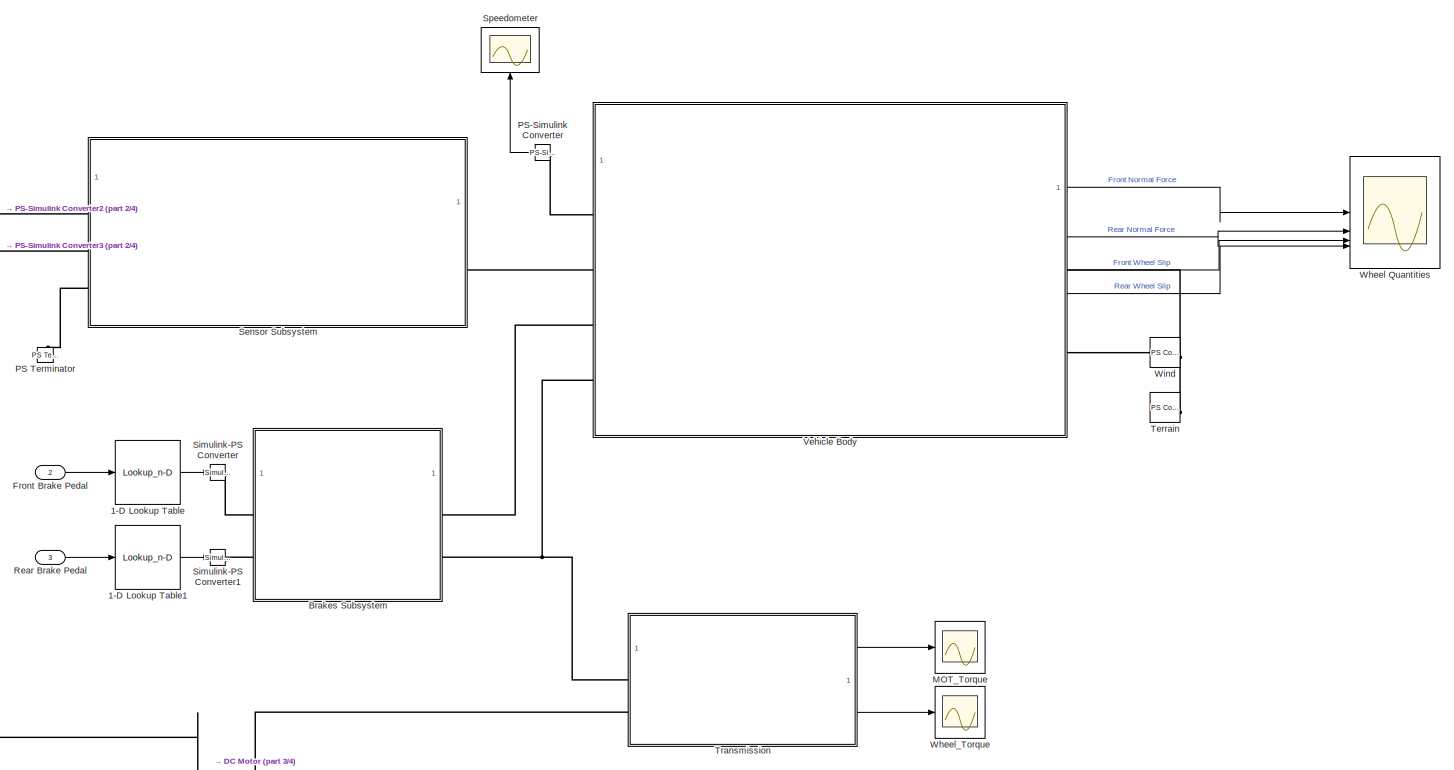
[diagram: root canvas - part 1/4, top right region]
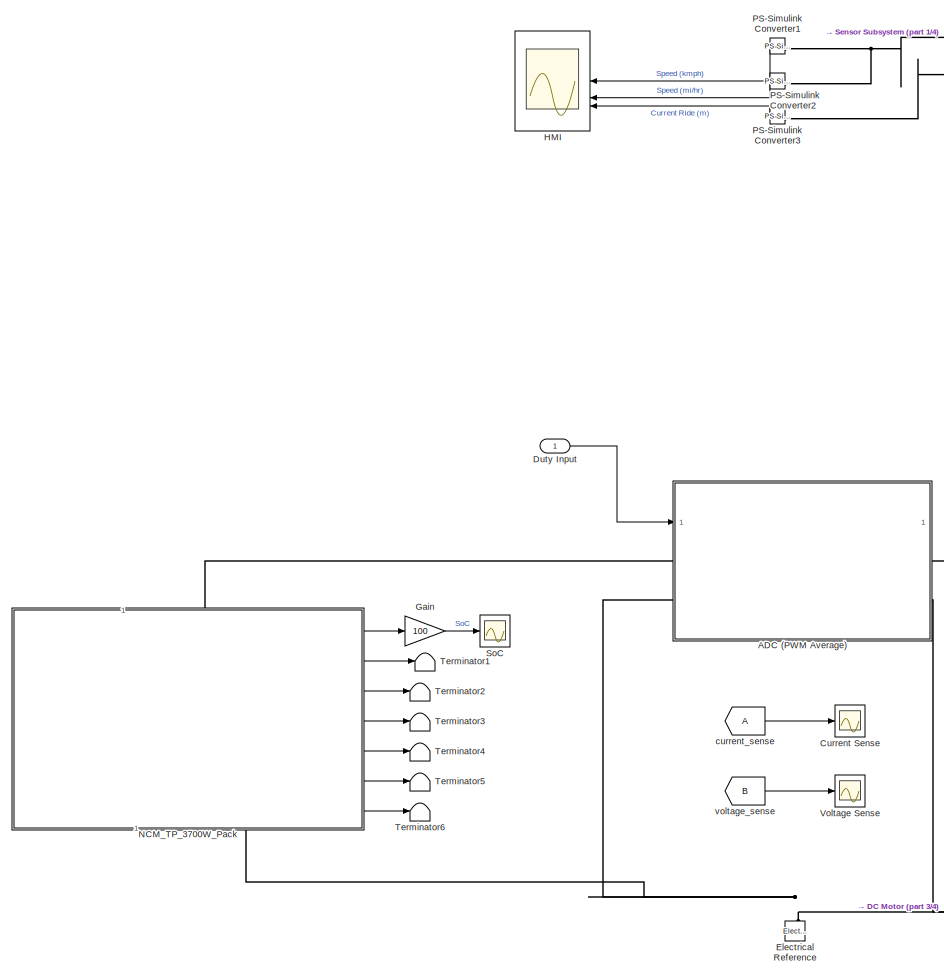
[diagram: root canvas - part 2/4, middle left region]
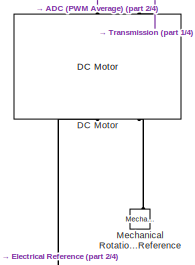
[diagram: root canvas - part 3/4, central region]
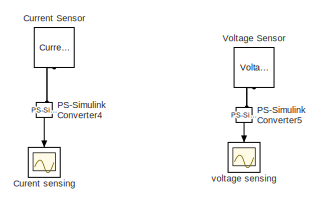
[diagram: root canvas - part 4/4, bottom center region]
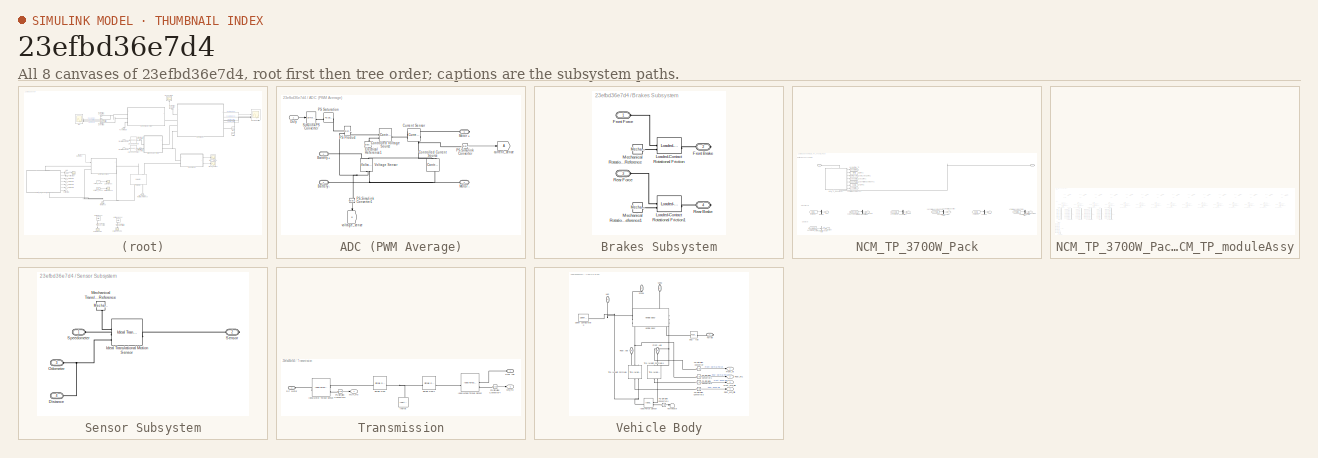
[diagram: thumbnail index - all 8 canvases of the model, root first then tree order]
MODEL slx_23efbd36e7d4
KIND model
CONFIG AbsTol = auto
CONFIG EnableMultiTasking = off
CONFIG FixedStep = auto
CONFIG MaxStep = auto
CONFIG MinStep = auto
CONFIG PreLoadFcn = load terrain_data.mat\nload NCM_TP_3700W_Pack.mat
CONFIG RelTol = 1e-3
CONFIG SampleTimeConstraint = Unconstrained
CONFIG SolverName = ode23t
CONFIG StartTime = 0
CONFIG StopTime = 100
BLOCK [Lookup_n-D] 1-D Lookup Table
  BreakpointsForDimension1 = 0:0.01:1
  InputPortMap = u0
  InternalRulePriority = Speed
  NumberOfTableDimensions = 1
  RndMeth = Simplest
  Table = 0:10:1000
  TableDataTypeStr = double
BLOCK [Lookup_n-D] 1-D Lookup Table1
  BreakpointsForDimension1 = 0:0.01:1
  InputPortMap = u0
  InternalRulePriority = Speed
  NumberOfTableDimensions = 1
  RndMeth = Simplest
  Table = 0:10:1000
  TableDataTypeStr = double
BLOCK [SubSystem] ADC (PWM Average)
BLOCK [PMIOPort] ADC (PWM Average)/Battery +
  Side = Left
BLOCK [PMIOPort] ADC (PWM Average)/Battery -
  Port = 2
  Side = Left
BLOCK [Reference] ADC (PWM Average)/Controlled Current Source  REF=fl_lib/Electrical/Electrical Sources/Controlled Current
Source
  NameLocation = left
  SourceBlock = fl_lib/Electrical/Electrical Sources/Controlled Current\nSource
  SourceType = Controlled Current\nSource
BLOCK [Reference] ADC (PWM Average)/Controlled Voltage Source  REF=fl_lib/Electrical/Electrical Sources/Controlled Voltage
Source
  NameLocation = top
  SourceBlock = fl_lib/Electrical/Electrical Sources/Controlled Voltage\nSource
  SourceType = Controlled Voltage\nSource
BLOCK [Reference] ADC (PWM Average)/Current Sensor  REF=fl_lib/Electrical/Electrical Sensors/Current Sensor
  NameLocation = top
  SourceBlock = fl_lib/Electrical/Electrical Sensors/Current Sensor
  SourceType = Current Sensor
BLOCK [Inport] ADC (PWM Average)/Duty
BLOCK [Reference] ADC (PWM Average)/Electrical Reference1  REF=fl_lib/Electrical/Electrical Elements/Electrical Reference
  NameLocation = right
  SourceBlock = fl_lib/Electrical/Electrical Elements/Electrical Reference
  SourceType = Electrical Reference
BLOCK [PMIOPort] ADC (PWM Average)/Motor +
  Port = 3
  Side = Right
BLOCK [PMIOPort] ADC (PWM Average)/Motor -
  Port = 4
  Side = Right
BLOCK [Reference] ADC (PWM Average)/PS Product  REF=fl_ps_legacy_lib/Legacy Physical
Signals/Functions/PS Product
  NameLocation = top
  SourceBlock = fl_ps_legacy_lib/Legacy Physical\nSignals/Functions/PS Product
  SourceType = PS Product
BLOCK [Reference] ADC (PWM Average)/PS Saturation  REF=fl_ps_legacy_lib/Legacy Physical
Signals/Nonlinear Operators/PS Saturation
  NameLocation = top
  SourceBlock = fl_ps_legacy_lib/Legacy Physical\nSignals/Nonlinear Operators/PS Saturation
  SourceType = PS Saturation
BLOCK [Reference] ADC (PWM Average)/PS-Simulink Converter  REF=nesl_utility/PS-Simulink
Converter
  SourceBlock = nesl_utility/PS-Simulink\nConverter
  SourceType = PS-Simulink\nConverter
BLOCK [Reference] ADC (PWM Average)/PS-Simulink Converter1  REF=nesl_utility/PS-Simulink
Converter
  NameLocation = left
  SourceBlock = nesl_utility/PS-Simulink\nConverter
  SourceType = PS-Simulink\nConverter
BLOCK [Reference] ADC (PWM Average)/Simulink-PS Converter  REF=nesl_utility/Simulink-PS
Converter
  SourceBlock = nesl_utility/Simulink-PS\nConverter
  SourceType = Simulink-PS\nConverter
BLOCK [Reference] ADC (PWM Average)/Voltage Sensor  REF=fl_lib/Electrical/Electrical Sensors/Voltage Sensor
  NameLocation = left
  SourceBlock = fl_lib/Electrical/Electrical Sensors/Voltage Sensor
  SourceType = Voltage Sensor
BLOCK [Goto] ADC (PWM Average)/current_sense
  TagVisibility = global
BLOCK [Goto] ADC (PWM Average)/voltage_sense
  GotoTag = B
  TagVisibility = global
BLOCK [SubSystem] Brakes Subsystem
BLOCK [PMIOPort] Brakes Subsystem/Front Brake
  Port = 2
  Side = Right
BLOCK [PMIOPort] Brakes Subsystem/Front Force
  Side = Left
BLOCK [Reference] Brakes Subsystem/Loaded-Contact Rotational Friction  REF=sdl_lib/Brakes & Detents/Rotational/Loaded-Contact
Rotational Friction
  NameLocation = top
  SourceBlock = sdl_lib/Brakes & Detents/Rotational/Loaded-Contact\nRotational Friction
  SourceType = Loaded-Contact\nRotational Friction
BLOCK [Reference] Brakes Subsystem/Loaded-Contact Rotational Friction1  REF=sdl_lib/Brakes & Detents/Rotational/Loaded-Contact
Rotational Friction
  NameLocation = top
  SourceBlock = sdl_lib/Brakes & Detents/Rotational/Loaded-Contact\nRotational Friction
  SourceType = Loaded-Contact\nRotational Friction
BLOCK [Reference] Brakes Subsystem/Mechanical Rotational Reference  REF=fl_lib/Mechanical/Rotational Elements/Mechanical
Rotational Reference
  NameLocation = left
  SourceBlock = fl_lib/Mechanical/Rotational Elements/Mechanical\nRotational Reference
  SourceType = Mechanical\nRotational Reference
BLOCK [Reference] Brakes Subsystem/Mechanical Rotational Reference1  REF=fl_lib/Mechanical/Rotational Elements/Mechanical
Rotational Reference
  SourceBlock = fl_lib/Mechanical/Rotational Elements/Mechanical\nRotational Reference
  SourceType = Mechanical\nRotational Reference
BLOCK [PMIOPort] Brakes Subsystem/Rear Brake
  Port = 4
  Side = Right
BLOCK [PMIOPort] Brakes Subsystem/Rear Force
  Port = 3
  Side = Left
BLOCK [Scope] Curent sensing
  ActiveDisplayYMaximum = 489.97989263859722
  ActiveDisplayYMinimum = -54.442210227956124
  Commented = on
  ContainerLayout = {"WindowBounds":[112,0,1309,844],"gridDimensions":{"w":1,"h":1},"tileCount":1,"tileCoverage":1,"columnWeights":1,"rowWeights":1,"tileOccupancy":{"children":[{"id":"/SoC"},{"id":"/Wheel Quantities"},{"id":"/HMI"},{"id":"/MOT_Torque"},{"id":"/Wheel_Torque"},{"id":"/Current Sense"},{"id":"/Voltage Sense"}]}}
  DataLoggingVariableName = ScopeData3
  Floating = off
  GraphicalSettings = {"Style":{"BackgroundColor":[0.12941176470588237,0.12941176470588237,0.12941176470588237],"AxesColor":[0.07058823529411765,0.07058823529411765,0.07058823529411765],"LabelsColor":[0.8509803921568627,0.8509803921568627,0.8509803921568627],"PreserveColors":false,"Visible":[true],"LineStyle":["-"],"LineWidth":[1.5],"BarWidth":[0.9],"LineColor":["auto"],"LineFaceAlpha":[1],"LineEdgeAlpha":[1],"Marker":...<+2025ch>
  MultipleDisplayCache = [{"MaxYLimMag":489.97989263859722,"MaxYLimReal":489.97989263859722,"MinYLimMag":0,"MinYLimReal":-54.442210227956124,"PlotAsMagnitudePhase":false,"ShowGrid":true,"ShowLegend":false,"Title":"%<SignalLabel>","YLabel":""}]
  NumInputPorts = 1
  ScopeFrameLocation = container
  WasSavedAsWebScope = on
  WindowPosition = [120.000000,40.000000,1294.000000,806.000000,]
BLOCK [Scope] Current Sense
  ActiveDisplayYMaximum = 374.201526449331
  ActiveDisplayYMinimum = -46.787986292582218
  ContainerLayout = {"WindowBounds":[114,0,1323,882],"gridDimensions":{"w":1,"h":1},"tileCount":1,"tileCoverage":1,"columnWeights":1,"rowWeights":1,"tileOccupancy":{"children":[{"id":"/SoC"},{"id":"/Wheel Quantities"},{"id":"/HMI"},{"id":"/MOT_Torque"},{"id":"/Wheel_Torque"},{"id":"/Current Sense"},{"id":"/Voltage Sense"}]}}  <repeated x7 — deduplicated; at blocks: Current Sense, HMI, MOT_Torque, SoC, Voltage Sense, Wheel Quantities, Wheel_Torque>
  DataLoggingVariableName = ScopeData5
  Floating = off
  GraphicalSettings = {"AxesScalingProperties":{"AlignXAxis":"Center","AlignYAxis":"Center","AutoScaleXAxisLimits":false,"AxesScaling":"Manual","AxesScalingNumUpdates":10,"ExpandOnly":true,"ScaleAxesLimitsAtStop":false,"XAxisDataRange":100,"YAxisDataRange":80},"DisplayProperties":{"ColorOrder":["auto","auto","auto","auto","auto","auto","auto","auto","auto","auto","auto","auto","auto","auto","auto","auto","auto","auto",...<+2034ch>
  MultipleDisplayCache = [{"MaxYLimMag":269.27044822907521,"MaxYLimReal":374.201526449331,"MinYLimMag":0,"MinYLimReal":-46.787986292582218,"PlotAsMagnitudePhase":false,"ShowGrid":true,"ShowLegend":false,"Title":"%<SignalLabel>","YLabel":""}]
  NumInputPorts = 1
  ScopeFrameLocation = container
  Visible = on
  WasSavedAsWebScope = on
  WindowPosition = [122.000000,-9.000000,1309.000000,844.000000,]
BLOCK [Reference] Current Sensor  REF=fl_lib/Electrical/Electrical Sensors/Current Sensor
  Commented = on
  NameLocation = left
  SourceBlock = fl_lib/Electrical/Electrical Sensors/Current Sensor
  SourceType = Current Sensor
BLOCK [Reference] DC Motor  REF=ee_lib/Electromechanical/Brushed Motors/DC Motor
  NameLocation = right
  SourceBlock = ee_lib/Electromechanical/Brushed Motors/DC Motor
  SourceType = DC Motor
BLOCK [Inport] Duty Input
  OutDataTypeStr = double
BLOCK [Reference] Electrical Reference  REF=fl_lib/Electrical/Electrical Elements/Electrical Reference
  SourceBlock = fl_lib/Electrical/Electrical Elements/Electrical Reference
  SourceType = Electrical Reference
BLOCK [Inport] Front Brake Pedal
  OutDataTypeStr = double
  Port = 2
BLOCK [Gain] Gain
  Gain = 100
  NameLocation = top
BLOCK [Scope] HMI
  ActiveDisplayYMaximum = 483.7407586284645
  ActiveDisplayYMinimum = -208.81866884061219
  DataLoggingVariableName = ScopeData1
  Floating = off
  GraphicalSettings = {"AxesScalingProperties":{"AlignXAxis":"Center","AlignYAxis":"Center","AutoScaleXAxisLimits":false,"AxesScaling":"Manual","AxesScalingNumUpdates":10,"ExpandOnly":true,"ScaleAxesLimitsAtStop":false,"XAxisDataRange":100,"YAxisDataRange":80},"DisplayProperties":{"ColorOrder":["auto","auto","auto","auto","auto","auto","auto","auto","auto","auto","auto","auto","auto","auto","auto","auto","auto","auto",...<+2260ch>
  MultipleDisplayCache = [{"MaxYLimMag":164.51485,"MaxYLimReal":483.7407586284645,"MinYLimMag":0,"MinYLimReal":-208.81866884061219,"PlotAsMagnitudePhase":false,"ShowGrid":true,"ShowLegend":true,"Title":"%<SignalLabel>","YLabel":""}]
  NumInputPorts = 3
  ScopeFrameLocation = container
  ShowLegend = on
  Visible = on
  WasSavedAsWebScope = on
  WindowPosition = [122.000000,-9.000000,1309.000000,844.000000,]
BLOCK [Scope] MOT_Torque
  ActiveDisplayYMaximum = 173.02081576612298
  ActiveDisplayYMinimum = -40.225007233877079
  DataLoggingVariableName = ScopeData1
  Floating = off
  GraphicalSettings = {"Style":{"BackgroundColor":[0.12941176470588237,0.12941176470588237,0.12941176470588237],"AxesColor":[0.07058823529411765,0.07058823529411765,0.07058823529411765],"LabelsColor":[0.8509803921568627,0.8509803921568627,0.8509803921568627],"PreserveColors":false,"Visible":[true],"LineStyle":["-"],"LineWidth":[1.5],"BarWidth":[0.9],"LineColor":["auto"],"LineFaceAlpha":[1],"LineEdgeAlpha":[1],"Marker":...<+1995ch>
  MultipleDisplayCache = [{"MaxYLimMag":182.78213,"MaxYLimReal":173.02081576612298,"MinYLimMag":0,"MinYLimReal":-40.225007233877079,"PlotAsMagnitudePhase":false,"ShowGrid":true,"ShowLegend":false,"Title":"%<SignalLabel>","YLabel":""}]
  NameLocation = right
  NumInputPorts = 1
  ScopeFrameLocation = container
  Visible = on
  WasSavedAsWebScope = on
  WindowPosition = [122.000000,-9.000000,1309.000000,844.000000,]
BLOCK [Reference] Mechanical Rotational Reference  REF=fl_lib/Mechanical/Rotational Elements/Mechanical
Rotational Reference
  NameLocation = right
  SourceBlock = fl_lib/Mechanical/Rotational Elements/Mechanical\nRotational Reference
  SourceType = Mechanical\nRotational Reference
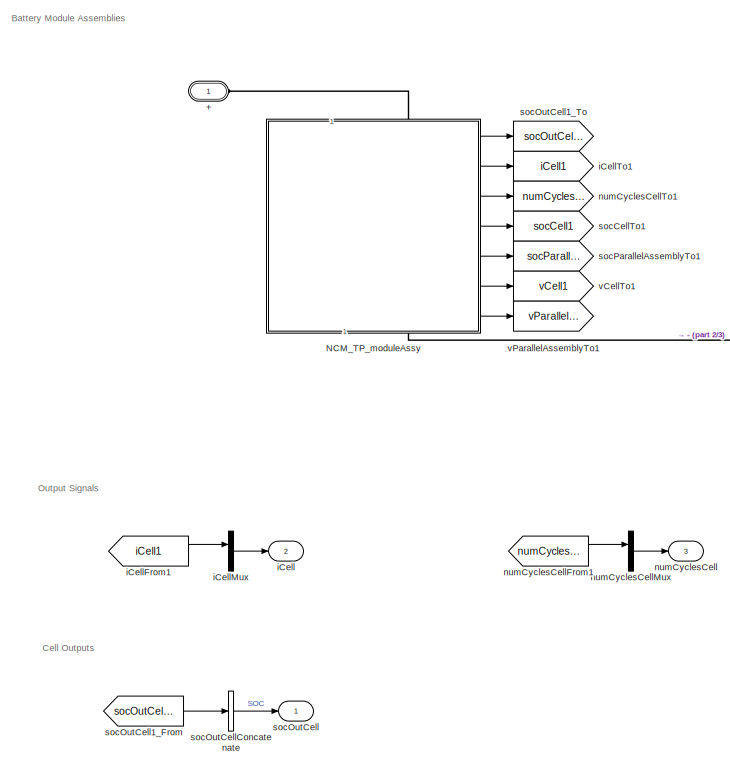
[diagram: NCM_TP_3700W_Pack - part 1/3, left side, full height]
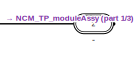
[diagram: NCM_TP_3700W_Pack - part 2/3, top right region]
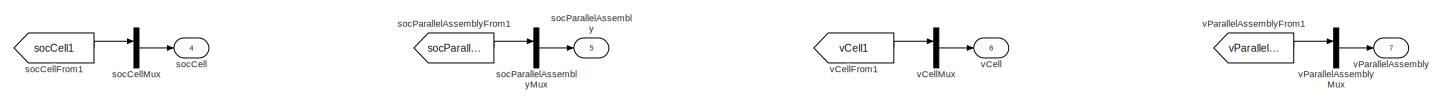
[diagram: NCM_TP_3700W_Pack - part 3/3, bottom right region]
BLOCK [SubSystem] NCM_TP_3700W_Pack
  CopyFcn = battery_builder_rtmsupport('copyfcn',gcbh);
  LoadFcn = battery_builder_rtmsupport('loadfcn',gcbh);
  NameLocation = left
  PortSchema = {"entries":[{"content":{"sides":[{"content":{"connectorIds":["LConn1"]},"type":"ConnectorPlacement.EquallySpacedRectSide","uuid":"ade6cf47-5c74-4de5-b63e-38ab085eaa81"},{"content":{"connectorIds":["RConn1"],"side":"RIGHT"},"type":"ConnectorPlacement.EquallySpacedRectSide","uuid":"71e99cc0-4e29-44db-a862-89332aff9194"},{"content":{"side":"TOP"},"type":"ConnectorPlacement.EquallySpacedRectSide","uui...<+419ch>
  PreCopyFcn = battery_builder_rtmsupport('precopyfcn',gcbh);
  PreDeleteFcn = battery_builder_rtmsupport('predeletefcn',gcbh);
BLOCK [PMIOPort] NCM_TP_3700W_Pack/+
  Side = Left
BLOCK [PMIOPort] NCM_TP_3700W_Pack/-
  Port = 2
  Side = Right
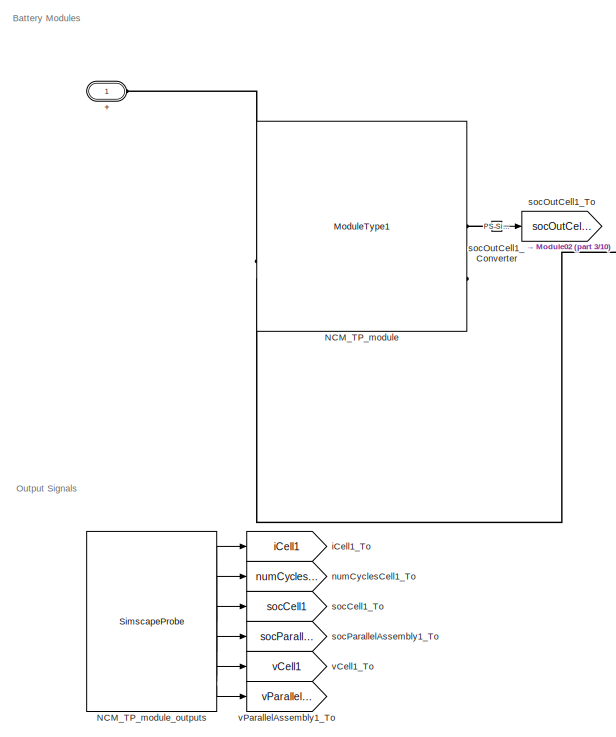
[diagram: NCM_TP_3700W_Pack/NCM_TP_moduleAssy - part 1/10, top left region]
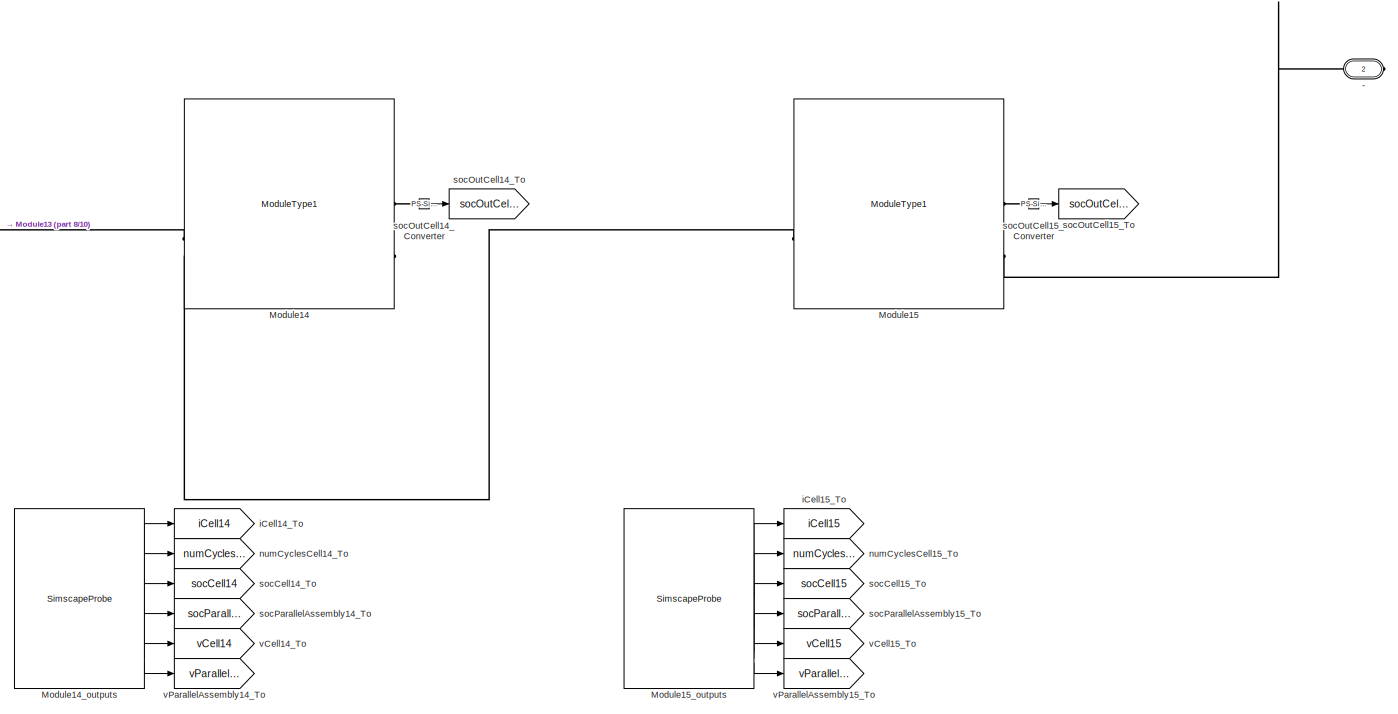
[diagram: NCM_TP_3700W_Pack/NCM_TP_moduleAssy - part 2/10, top right region]
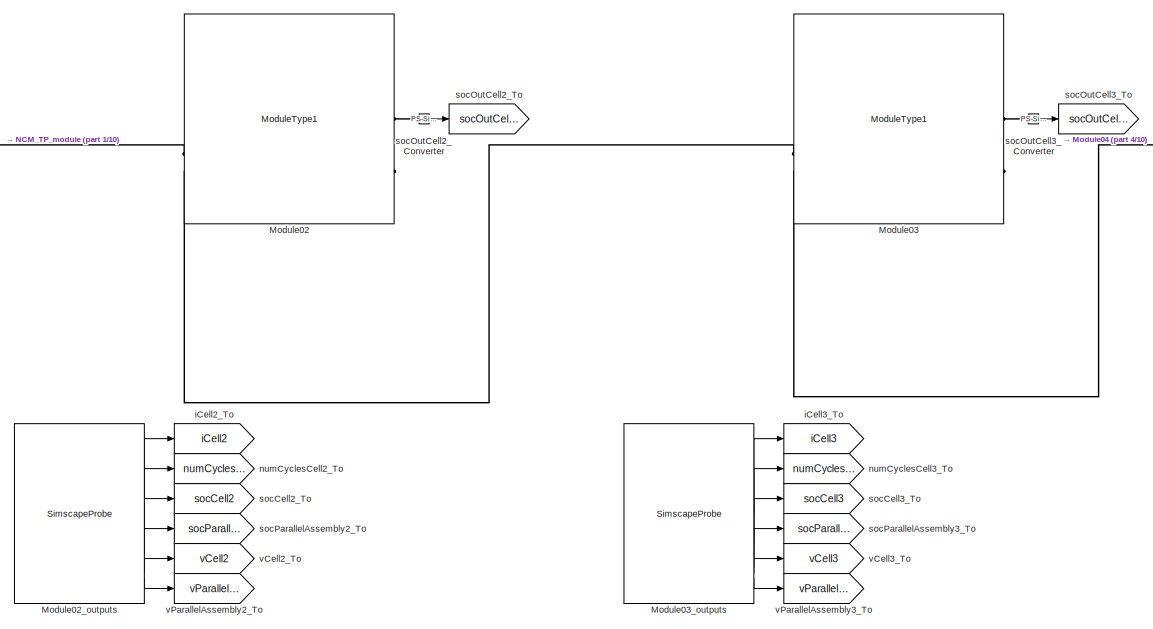
[diagram: NCM_TP_3700W_Pack/NCM_TP_moduleAssy - part 3/10, top left region]
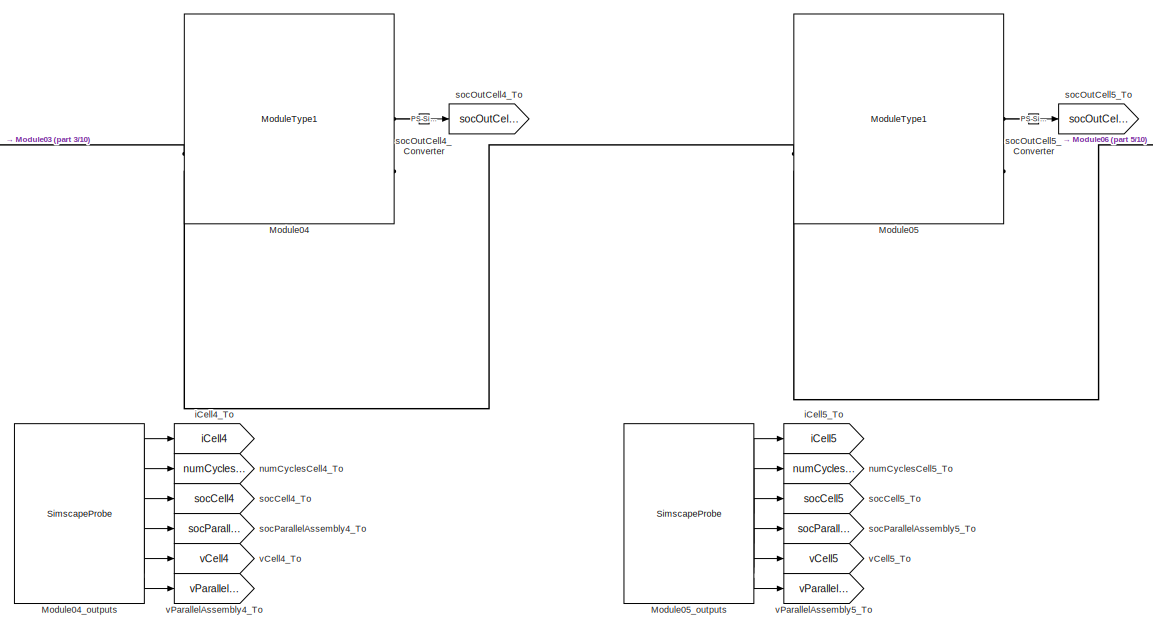
[diagram: NCM_TP_3700W_Pack/NCM_TP_moduleAssy - part 4/10, top left region]
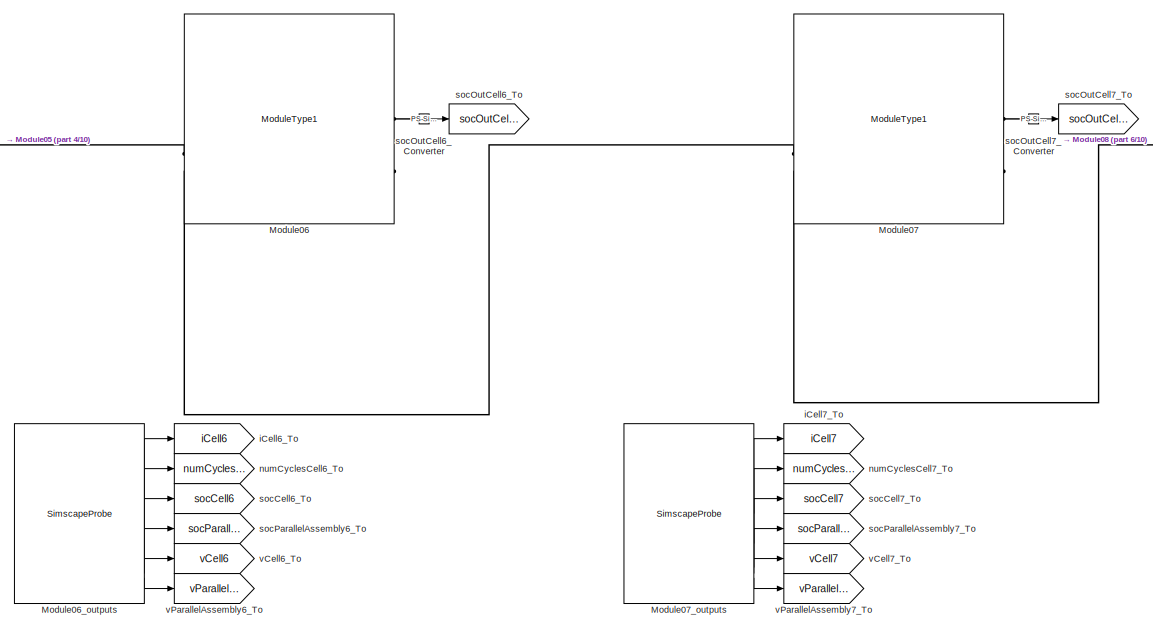
[diagram: NCM_TP_3700W_Pack/NCM_TP_moduleAssy - part 5/10, top center region]
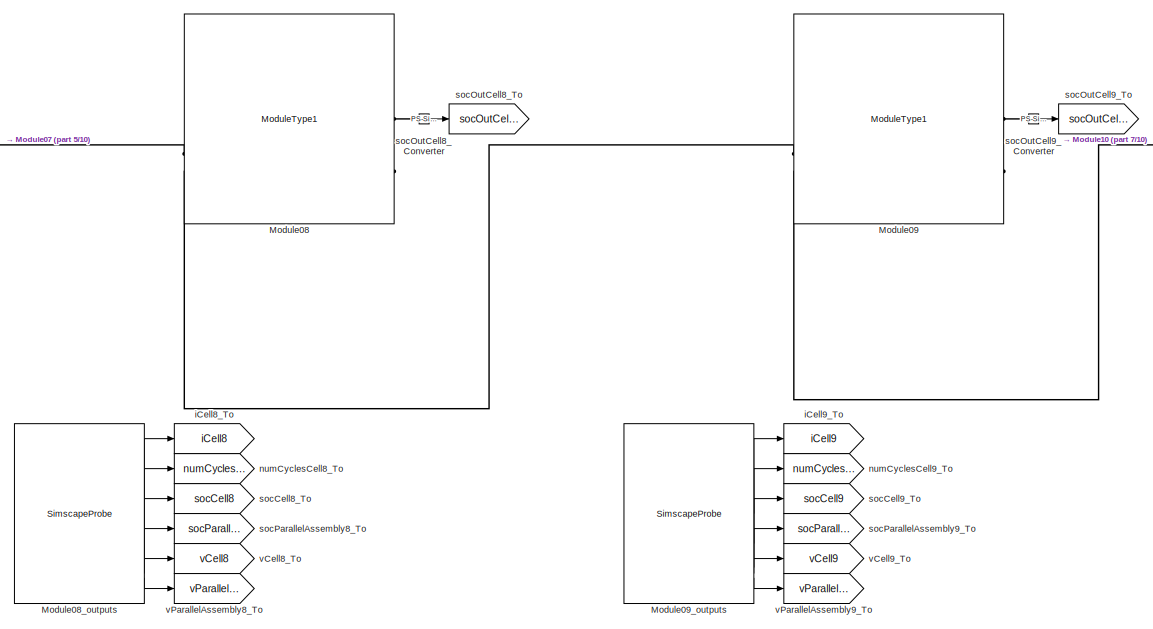
[diagram: NCM_TP_3700W_Pack/NCM_TP_moduleAssy - part 6/10, top center region]
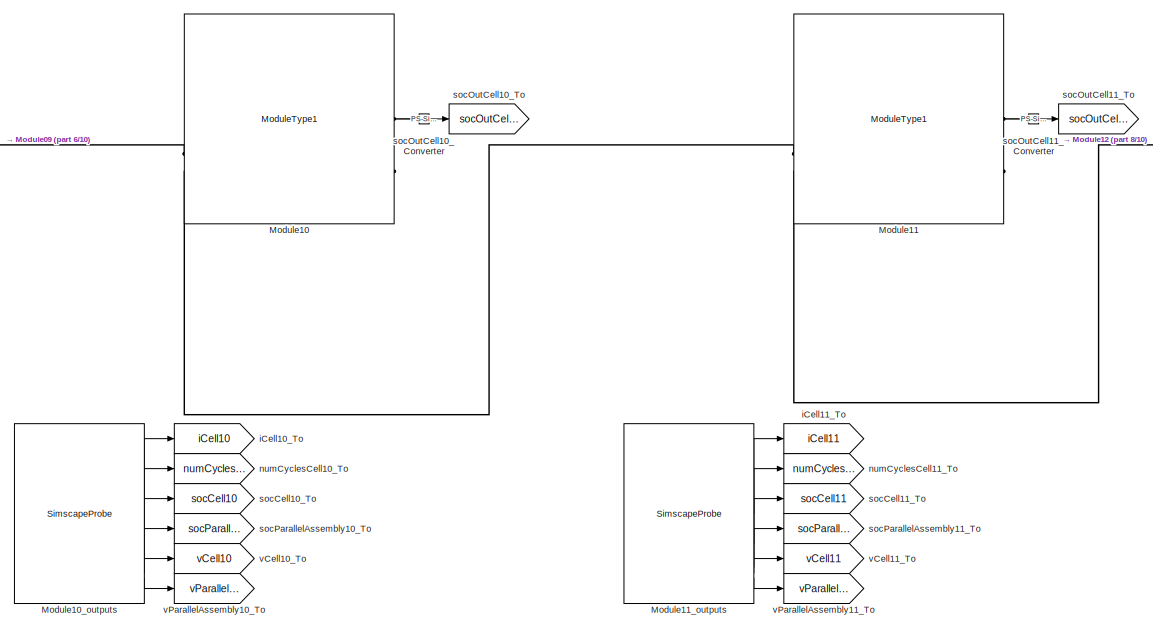
[diagram: NCM_TP_3700W_Pack/NCM_TP_moduleAssy - part 7/10, top center region]
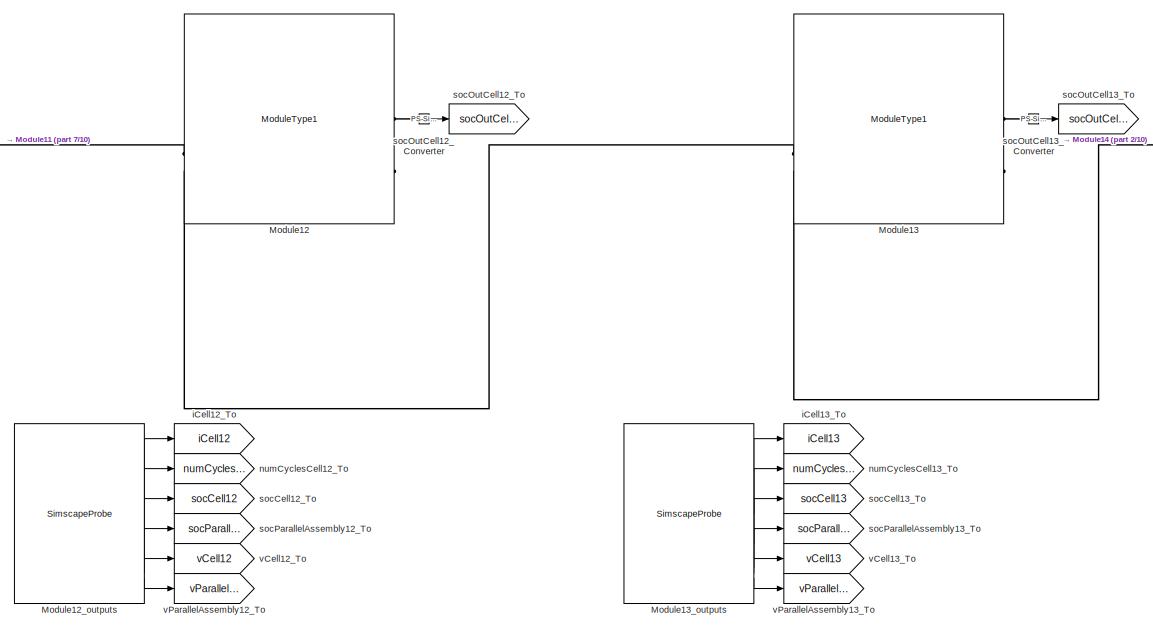
[diagram: NCM_TP_3700W_Pack/NCM_TP_moduleAssy - part 8/10, top right region]
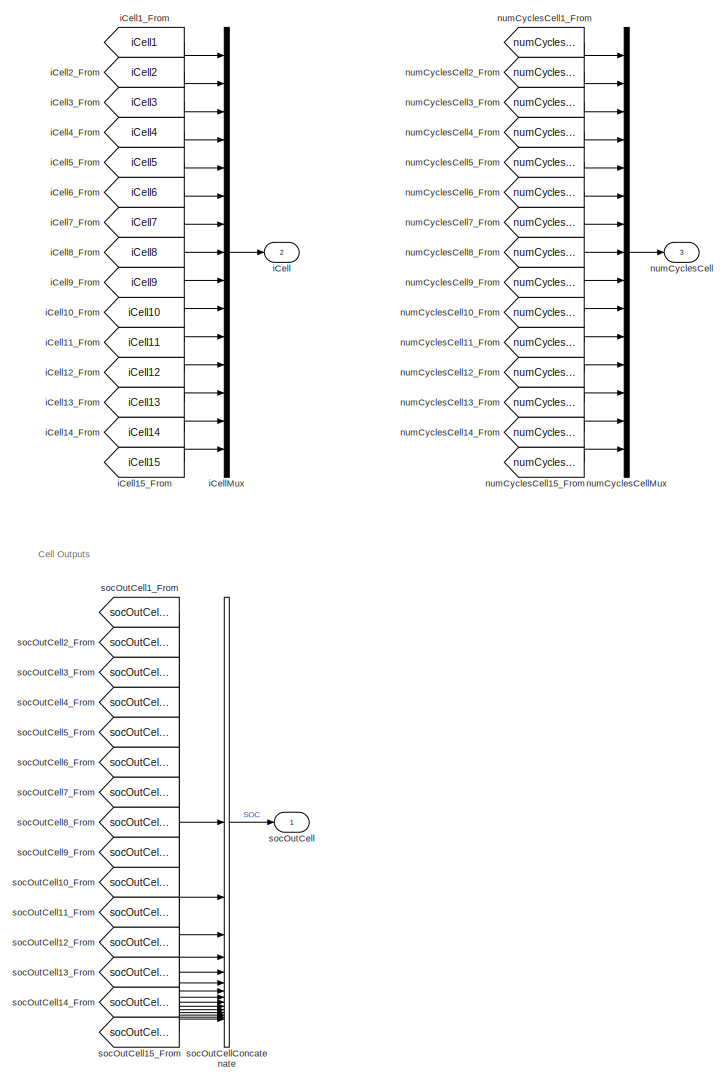
[diagram: NCM_TP_3700W_Pack/NCM_TP_moduleAssy - part 9/10, bottom left region]
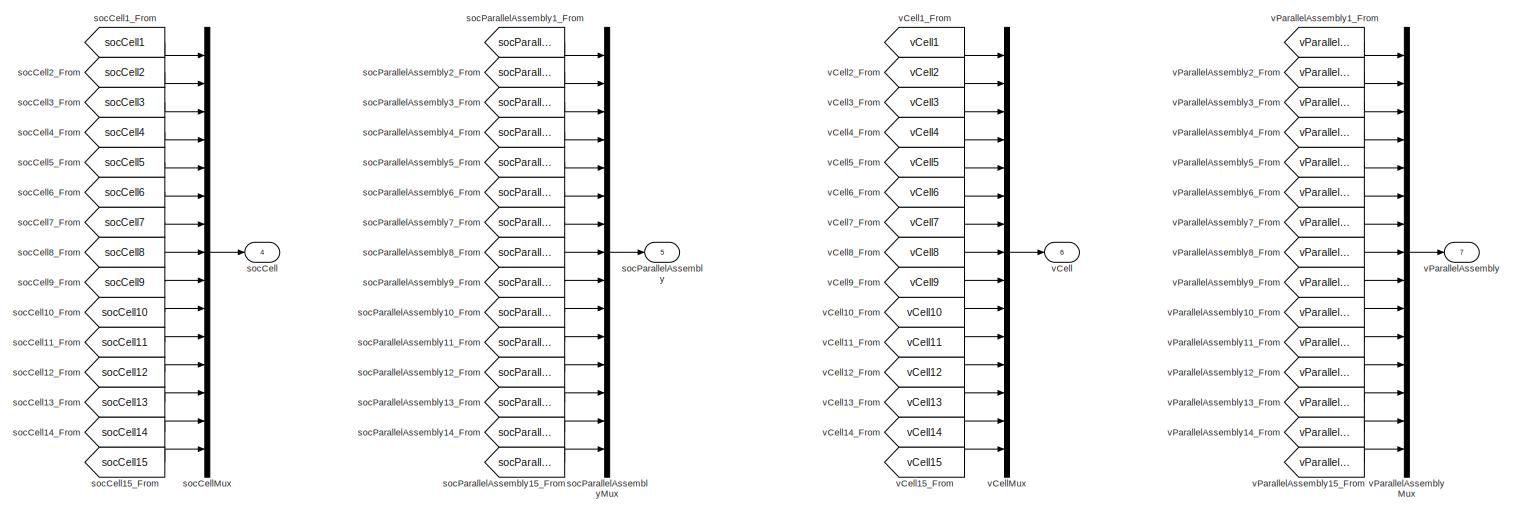
[diagram: NCM_TP_3700W_Pack/NCM_TP_moduleAssy - part 10/10, middle left region]
BLOCK [SubSystem] NCM_TP_3700W_Pack/NCM_TP_moduleAssy
  CopyFcn = battery_builder_rtmsupport('copyfcn',gcbh);
  LoadFcn = battery_builder_rtmsupport('loadfcn',gcbh);
  PortSchema = {"entries":[{"content":{"sides":[{"content":{"connectorIds":["LConn1"]},"type":"ConnectorPlacement.EquallySpacedRectSide","uuid":"ade6cf47-5c74-4de5-b63e-38ab085eaa81"},{"content":{"connectorIds":["RConn1"],"side":"RIGHT"},"type":"ConnectorPlacement.EquallySpacedRectSide","uuid":"71e99cc0-4e29-44db-a862-89332aff9194"},{"content":{"side":"TOP"},"type":"ConnectorPlacement.EquallySpacedRectSide","uui...<+419ch>
  PreCopyFcn = battery_builder_rtmsupport('precopyfcn',gcbh);
  PreDeleteFcn = battery_builder_rtmsupport('predeletefcn',gcbh);
BLOCK [PMIOPort] NCM_TP_3700W_Pack/NCM_TP_moduleAssy/+
  Side = Left
BLOCK [PMIOPort] NCM_TP_3700W_Pack/NCM_TP_moduleAssy/-
  Port = 2
  Side = Right
BLOCK [Reference] NCM_TP_3700W_Pack/NCM_TP_moduleAssy/Module02  REF=NCM_TP_3700W_Pack_lib/Modules/ModuleType1
  SourceBlock = NCM_TP_3700W_Pack_lib/Modules/ModuleType1
  SourceType = ModuleType1
BLOCK [SimscapeProbe] NCM_TP_3700W_Pack/NCM_TP_moduleAssy/Module02_outputs
  BoundBlock = 4235
  Variables = {"iCell":{"Probing":"ON"},"numCyclesCell":{"Probing":"ON"},"socCell":{"Probing":"ON"},"socParallelAssembly":{"Probing":"ON"},"vCell":{"Probing":"ON"},"vParallelAssembly":{"Probing":"ON"}}
BLOCK [Reference] NCM_TP_3700W_Pack/NCM_TP_moduleAssy/Module03  REF=NCM_TP_3700W_Pack_lib/Modules/ModuleType1
  SourceBlock = NCM_TP_3700W_Pack_lib/Modules/ModuleType1
  SourceType = ModuleType1
BLOCK [SimscapeProbe] NCM_TP_3700W_Pack/NCM_TP_moduleAssy/Module03_outputs
  BoundBlock = 4237
  Variables = {"iCell":{"Probing":"ON"},"numCyclesCell":{"Probing":"ON"},"socCell":{"Probing":"ON"},"socParallelAssembly":{"Probing":"ON"},"vCell":{"Probing":"ON"},"vParallelAssembly":{"Probing":"ON"}}
BLOCK [Reference] NCM_TP_3700W_Pack/NCM_TP_moduleAssy/Module04  REF=NCM_TP_3700W_Pack_lib/Modules/ModuleType1
  SourceBlock = NCM_TP_3700W_Pack_lib/Modules/ModuleType1
  SourceType = ModuleType1
BLOCK [SimscapeProbe] NCM_TP_3700W_Pack/NCM_TP_moduleAssy/Module04_outputs
  BoundBlock = 4239
  Variables = {"iCell":{"Probing":"ON"},"numCyclesCell":{"Probing":"ON"},"socCell":{"Probing":"ON"},"socParallelAssembly":{"Probing":"ON"},"vCell":{"Probing":"ON"},"vParallelAssembly":{"Probing":"ON"}}
BLOCK [Reference] NCM_TP_3700W_Pack/NCM_TP_moduleAssy/Module05  REF=NCM_TP_3700W_Pack_lib/Modules/ModuleType1
  SourceBlock = NCM_TP_3700W_Pack_lib/Modules/ModuleType1
  SourceType = ModuleType1
BLOCK [SimscapeProbe] NCM_TP_3700W_Pack/NCM_TP_moduleAssy/Module05_outputs
  BoundBlock = 4241
  Variables = {"iCell":{"Probing":"ON"},"numCyclesCell":{"Probing":"ON"},"socCell":{"Probing":"ON"},"socParallelAssembly":{"Probing":"ON"},"vCell":{"Probing":"ON"},"vParallelAssembly":{"Probing":"ON"}}
BLOCK [Reference] NCM_TP_3700W_Pack/NCM_TP_moduleAssy/Module06  REF=NCM_TP_3700W_Pack_lib/Modules/ModuleType1
  SourceBlock = NCM_TP_3700W_Pack_lib/Modules/ModuleType1
  SourceType = ModuleType1
BLOCK [SimscapeProbe] NCM_TP_3700W_Pack/NCM_TP_moduleAssy/Module06_outputs
  BoundBlock = 4243
  Variables = {"iCell":{"Probing":"ON"},"numCyclesCell":{"Probing":"ON"},"socCell":{"Probing":"ON"},"socParallelAssembly":{"Probing":"ON"},"vCell":{"Probing":"ON"},"vParallelAssembly":{"Probing":"ON"}}
BLOCK [Reference] NCM_TP_3700W_Pack/NCM_TP_moduleAssy/Module07  REF=NCM_TP_3700W_Pack_lib/Modules/ModuleType1
  SourceBlock = NCM_TP_3700W_Pack_lib/Modules/ModuleType1
  SourceType = ModuleType1
BLOCK [SimscapeProbe] NCM_TP_3700W_Pack/NCM_TP_moduleAssy/Module07_outputs
  BoundBlock = 4245
  Variables = {"iCell":{"Probing":"ON"},"numCyclesCell":{"Probing":"ON"},"socCell":{"Probing":"ON"},"socParallelAssembly":{"Probing":"ON"},"vCell":{"Probing":"ON"},"vParallelAssembly":{"Probing":"ON"}}
BLOCK [Reference] NCM_TP_3700W_Pack/NCM_TP_moduleAssy/Module08  REF=NCM_TP_3700W_Pack_lib/Modules/ModuleType1
  SourceBlock = NCM_TP_3700W_Pack_lib/Modules/ModuleType1
  SourceType = ModuleType1
BLOCK [SimscapeProbe] NCM_TP_3700W_Pack/NCM_TP_moduleAssy/Module08_outputs
  BoundBlock = 4247
  Variables = {"iCell":{"Probing":"ON"},"numCyclesCell":{"Probing":"ON"},"socCell":{"Probing":"ON"},"socParallelAssembly":{"Probing":"ON"},"vCell":{"Probing":"ON"},"vParallelAssembly":{"Probing":"ON"}}
BLOCK [Reference] NCM_TP_3700W_Pack/NCM_TP_moduleAssy/Module09  REF=NCM_TP_3700W_Pack_lib/Modules/ModuleType1
  SourceBlock = NCM_TP_3700W_Pack_lib/Modules/ModuleType1
  SourceType = ModuleType1
BLOCK [SimscapeProbe] NCM_TP_3700W_Pack/NCM_TP_moduleAssy/Module09_outputs
  BoundBlock = 4249
  Variables = {"iCell":{"Probing":"ON"},"numCyclesCell":{"Probing":"ON"},"socCell":{"Probing":"ON"},"socParallelAssembly":{"Probing":"ON"},"vCell":{"Probing":"ON"},"vParallelAssembly":{"Probing":"ON"}}
BLOCK [Reference] NCM_TP_3700W_Pack/NCM_TP_moduleAssy/Module10  REF=NCM_TP_3700W_Pack_lib/Modules/ModuleType1
  SourceBlock = NCM_TP_3700W_Pack_lib/Modules/ModuleType1
  SourceType = ModuleType1
BLOCK [SimscapeProbe] NCM_TP_3700W_Pack/NCM_TP_moduleAssy/Module10_outputs
  BoundBlock = 4251
  Variables = {"iCell":{"Probing":"ON"},"numCyclesCell":{"Probing":"ON"},"socCell":{"Probing":"ON"},"socParallelAssembly":{"Probing":"ON"},"vCell":{"Probing":"ON"},"vParallelAssembly":{"Probing":"ON"}}
BLOCK [Reference] NCM_TP_3700W_Pack/NCM_TP_moduleAssy/Module11  REF=NCM_TP_3700W_Pack_lib/Modules/ModuleType1
  SourceBlock = NCM_TP_3700W_Pack_lib/Modules/ModuleType1
  SourceType = ModuleType1
BLOCK [SimscapeProbe] NCM_TP_3700W_Pack/NCM_TP_moduleAssy/Module11_outputs
  BoundBlock = 4253
  Variables = {"iCell":{"Probing":"ON"},"numCyclesCell":{"Probing":"ON"},"socCell":{"Probing":"ON"},"socParallelAssembly":{"Probing":"ON"},"vCell":{"Probing":"ON"},"vParallelAssembly":{"Probing":"ON"}}
BLOCK [Reference] NCM_TP_3700W_Pack/NCM_TP_moduleAssy/Module12  REF=NCM_TP_3700W_Pack_lib/Modules/ModuleType1
  SourceBlock = NCM_TP_3700W_Pack_lib/Modules/ModuleType1
  SourceType = ModuleType1
BLOCK [SimscapeProbe] NCM_TP_3700W_Pack/NCM_TP_moduleAssy/Module12_outputs
  BoundBlock = 4255
  Variables = {"iCell":{"Probing":"ON"},"numCyclesCell":{"Probing":"ON"},"socCell":{"Probing":"ON"},"socParallelAssembly":{"Probing":"ON"},"vCell":{"Probing":"ON"},"vParallelAssembly":{"Probing":"ON"}}
BLOCK [Reference] NCM_TP_3700W_Pack/NCM_TP_moduleAssy/Module13  REF=NCM_TP_3700W_Pack_lib/Modules/ModuleType1
  SourceBlock = NCM_TP_3700W_Pack_lib/Modules/ModuleType1
  SourceType = ModuleType1
BLOCK [SimscapeProbe] NCM_TP_3700W_Pack/NCM_TP_moduleAssy/Module13_outputs
  BoundBlock = 4257
  Variables = {"iCell":{"Probing":"ON"},"numCyclesCell":{"Probing":"ON"},"socCell":{"Probing":"ON"},"socParallelAssembly":{"Probing":"ON"},"vCell":{"Probing":"ON"},"vParallelAssembly":{"Probing":"ON"}}
BLOCK [Reference] NCM_TP_3700W_Pack/NCM_TP_moduleAssy/Module14  REF=NCM_TP_3700W_Pack_lib/Modules/ModuleType1
  SourceBlock = NCM_TP_3700W_Pack_lib/Modules/ModuleType1
  SourceType = ModuleType1
BLOCK [SimscapeProbe] NCM_TP_3700W_Pack/NCM_TP_moduleAssy/Module14_outputs
  BoundBlock = 4259
  Variables = {"iCell":{"Probing":"ON"},"numCyclesCell":{"Probing":"ON"},"socCell":{"Probing":"ON"},"socParallelAssembly":{"Probing":"ON"},"vCell":{"Probing":"ON"},"vParallelAssembly":{"Probing":"ON"}}
BLOCK [Reference] NCM_TP_3700W_Pack/NCM_TP_moduleAssy/Module15  REF=NCM_TP_3700W_Pack_lib/Modules/ModuleType1
  SourceBlock = NCM_TP_3700W_Pack_lib/Modules/ModuleType1
  SourceType = ModuleType1
BLOCK [SimscapeProbe] NCM_TP_3700W_Pack/NCM_TP_moduleAssy/Module15_outputs
  BoundBlock = 4261
  Variables = {"iCell":{"Probing":"ON"},"numCyclesCell":{"Probing":"ON"},"socCell":{"Probing":"ON"},"socParallelAssembly":{"Probing":"ON"},"vCell":{"Probing":"ON"},"vParallelAssembly":{"Probing":"ON"}}
BLOCK [Reference] NCM_TP_3700W_Pack/NCM_TP_moduleAssy/NCM_TP_module  REF=NCM_TP_3700W_Pack_lib/Modules/ModuleType1
  SourceBlock = NCM_TP_3700W_Pack_lib/Modules/ModuleType1
  SourceType = ModuleType1
BLOCK [SimscapeProbe] NCM_TP_3700W_Pack/NCM_TP_moduleAssy/NCM_TP_module_outputs
  BoundBlock = 4263
  Variables = {"iCell":{"Probing":"ON"},"numCyclesCell":{"Probing":"ON"},"socCell":{"Probing":"ON"},"socParallelAssembly":{"Probing":"ON"},"vCell":{"Probing":"ON"},"vParallelAssembly":{"Probing":"ON"}}
BLOCK [Outport] NCM_TP_3700W_Pack/NCM_TP_moduleAssy/iCell
  Port = 2
BLOCK [From] NCM_TP_3700W_Pack/NCM_TP_moduleAssy/iCell10_From
  GotoTag = iCell10
BLOCK [Goto] NCM_TP_3700W_Pack/NCM_TP_moduleAssy/iCell10_To
  GotoTag = iCell10
BLOCK [From] NCM_TP_3700W_Pack/NCM_TP_moduleAssy/iCell11_From
  GotoTag = iCell11
BLOCK [Goto] NCM_TP_3700W_Pack/NCM_TP_moduleAssy/iCell11_To
  GotoTag = iCell11
BLOCK [From] NCM_TP_3700W_Pack/NCM_TP_moduleAssy/iCell12_From
  GotoTag = iCell12
BLOCK [Goto] NCM_TP_3700W_Pack/NCM_TP_moduleAssy/iCell12_To
  GotoTag = iCell12
BLOCK [From] NCM_TP_3700W_Pack/NCM_TP_moduleAssy/iCell13_From
  GotoTag = iCell13
BLOCK [Goto] NCM_TP_3700W_Pack/NCM_TP_moduleAssy/iCell13_To
  GotoTag = iCell13
BLOCK [From] NCM_TP_3700W_Pack/NCM_TP_moduleAssy/iCell14_From
  GotoTag = iCell14
BLOCK [Goto] NCM_TP_3700W_Pack/NCM_TP_moduleAssy/iCell14_To
  GotoTag = iCell14
BLOCK [From] NCM_TP_3700W_Pack/NCM_TP_moduleAssy/iCell15_From
  GotoTag = iCell15
BLOCK [Goto] NCM_TP_3700W_Pack/NCM_TP_moduleAssy/iCell15_To
  GotoTag = iCell15
BLOCK [From] NCM_TP_3700W_Pack/NCM_TP_moduleAssy/iCell1_From
  GotoTag = iCell1
BLOCK [Goto] NCM_TP_3700W_Pack/NCM_TP_moduleAssy/iCell1_To
  GotoTag = iCell1
BLOCK [From] NCM_TP_3700W_Pack/NCM_TP_moduleAssy/iCell2_From
  GotoTag = iCell2
BLOCK [Goto] NCM_TP_3700W_Pack/NCM_TP_moduleAssy/iCell2_To
  GotoTag = iCell2
BLOCK [From] NCM_TP_3700W_Pack/NCM_TP_moduleAssy/iCell3_From
  GotoTag = iCell3
BLOCK [Goto] NCM_TP_3700W_Pack/NCM_TP_moduleAssy/iCell3_To
  GotoTag = iCell3
BLOCK [From] NCM_TP_3700W_Pack/NCM_TP_moduleAssy/iCell4_From
  GotoTag = iCell4
BLOCK [Goto] NCM_TP_3700W_Pack/NCM_TP_moduleAssy/iCell4_To
  GotoTag = iCell4
BLOCK [From] NCM_TP_3700W_Pack/NCM_TP_moduleAssy/iCell5_From
  GotoTag = iCell5
BLOCK [Goto] NCM_TP_3700W_Pack/NCM_TP_moduleAssy/iCell5_To
  GotoTag = iCell5
BLOCK [From] NCM_TP_3700W_Pack/NCM_TP_moduleAssy/iCell6_From
  GotoTag = iCell6
BLOCK [Goto] NCM_TP_3700W_Pack/NCM_TP_moduleAssy/iCell6_To
  GotoTag = iCell6
BLOCK [From] NCM_TP_3700W_Pack/NCM_TP_moduleAssy/iCell7_From
  GotoTag = iCell7
BLOCK [Goto] NCM_TP_3700W_Pack/NCM_TP_moduleAssy/iCell7_To
  GotoTag = iCell7
BLOCK [From] NCM_TP_3700W_Pack/NCM_TP_moduleAssy/iCell8_From
  GotoTag = iCell8
BLOCK [Goto] NCM_TP_3700W_Pack/NCM_TP_moduleAssy/iCell8_To
  GotoTag = iCell8
BLOCK [From] NCM_TP_3700W_Pack/NCM_TP_moduleAssy/iCell9_From
  GotoTag = iCell9
BLOCK [Goto] NCM_TP_3700W_Pack/NCM_TP_moduleAssy/iCell9_To
  GotoTag = iCell9
BLOCK [Mux] NCM_TP_3700W_Pack/NCM_TP_moduleAssy/iCellMux
  DisplayOption = bar
  Inputs = 15
BLOCK [Outport] NCM_TP_3700W_Pack/NCM_TP_moduleAssy/numCyclesCell
  Port = 3
BLOCK [From] NCM_TP_3700W_Pack/NCM_TP_moduleAssy/numCyclesCell10_From
  GotoTag = numCyclesCell10
BLOCK [Goto] NCM_TP_3700W_Pack/NCM_TP_moduleAssy/numCyclesCell10_To
  GotoTag = numCyclesCell10
BLOCK [From] NCM_TP_3700W_Pack/NCM_TP_moduleAssy/numCyclesCell11_From
  GotoTag = numCyclesCell11
BLOCK [Goto] NCM_TP_3700W_Pack/NCM_TP_moduleAssy/numCyclesCell11_To
  GotoTag = numCyclesCell11
BLOCK [From] NCM_TP_3700W_Pack/NCM_TP_moduleAssy/numCyclesCell12_From
  GotoTag = numCyclesCell12
BLOCK [Goto] NCM_TP_3700W_Pack/NCM_TP_moduleAssy/numCyclesCell12_To
  GotoTag = numCyclesCell12
BLOCK [From] NCM_TP_3700W_Pack/NCM_TP_moduleAssy/numCyclesCell13_From
  GotoTag = numCyclesCell13
BLOCK [Goto] NCM_TP_3700W_Pack/NCM_TP_moduleAssy/numCyclesCell13_To
  GotoTag = numCyclesCell13
BLOCK [From] NCM_TP_3700W_Pack/NCM_TP_moduleAssy/numCyclesCell14_From
  GotoTag = numCyclesCell14
BLOCK [Goto] NCM_TP_3700W_Pack/NCM_TP_moduleAssy/numCyclesCell14_To
  GotoTag = numCyclesCell14
BLOCK [From] NCM_TP_3700W_Pack/NCM_TP_moduleAssy/numCyclesCell15_From
  GotoTag = numCyclesCell15
BLOCK [Goto] NCM_TP_3700W_Pack/NCM_TP_moduleAssy/numCyclesCell15_To
  GotoTag = numCyclesCell15
BLOCK [From] NCM_TP_3700W_Pack/NCM_TP_moduleAssy/numCyclesCell1_From
  GotoTag = numCyclesCell1
BLOCK [Goto] NCM_TP_3700W_Pack/NCM_TP_moduleAssy/numCyclesCell1_To
  GotoTag = numCyclesCell1
BLOCK [From] NCM_TP_3700W_Pack/NCM_TP_moduleAssy/numCyclesCell2_From
  GotoTag = numCyclesCell2
BLOCK [Goto] NCM_TP_3700W_Pack/NCM_TP_moduleAssy/numCyclesCell2_To
  GotoTag = numCyclesCell2
BLOCK [From] NCM_TP_3700W_Pack/NCM_TP_moduleAssy/numCyclesCell3_From
  GotoTag = numCyclesCell3
BLOCK [Goto] NCM_TP_3700W_Pack/NCM_TP_moduleAssy/numCyclesCell3_To
  GotoTag = numCyclesCell3
BLOCK [From] NCM_TP_3700W_Pack/NCM_TP_moduleAssy/numCyclesCell4_From
  GotoTag = numCyclesCell4
BLOCK [Goto] NCM_TP_3700W_Pack/NCM_TP_moduleAssy/numCyclesCell4_To
  GotoTag = numCyclesCell4
BLOCK [From] NCM_TP_3700W_Pack/NCM_TP_moduleAssy/numCyclesCell5_From
  GotoTag = numCyclesCell5
BLOCK [Goto] NCM_TP_3700W_Pack/NCM_TP_moduleAssy/numCyclesCell5_To
  GotoTag = numCyclesCell5
BLOCK [From] NCM_TP_3700W_Pack/NCM_TP_moduleAssy/numCyclesCell6_From
  GotoTag = numCyclesCell6
BLOCK [Goto] NCM_TP_3700W_Pack/NCM_TP_moduleAssy/numCyclesCell6_To
  GotoTag = numCyclesCell6
BLOCK [From] NCM_TP_3700W_Pack/NCM_TP_moduleAssy/numCyclesCell7_From
  GotoTag = numCyclesCell7
BLOCK [Goto] NCM_TP_3700W_Pack/NCM_TP_moduleAssy/numCyclesCell7_To
  GotoTag = numCyclesCell7
BLOCK [From] NCM_TP_3700W_Pack/NCM_TP_moduleAssy/numCyclesCell8_From
  GotoTag = numCyclesCell8
BLOCK [Goto] NCM_TP_3700W_Pack/NCM_TP_moduleAssy/numCyclesCell8_To
  GotoTag = numCyclesCell8
BLOCK [From] NCM_TP_3700W_Pack/NCM_TP_moduleAssy/numCyclesCell9_From
  GotoTag = numCyclesCell9
BLOCK [Goto] NCM_TP_3700W_Pack/NCM_TP_moduleAssy/numCyclesCell9_To
  GotoTag = numCyclesCell9
BLOCK [Mux] NCM_TP_3700W_Pack/NCM_TP_moduleAssy/numCyclesCellMux
  DisplayOption = bar
  Inputs = 15
BLOCK [Outport] NCM_TP_3700W_Pack/NCM_TP_moduleAssy/socCell
  Port = 4
BLOCK [From] NCM_TP_3700W_Pack/NCM_TP_moduleAssy/socCell10_From
  GotoTag = socCell10
BLOCK [Goto] NCM_TP_3700W_Pack/NCM_TP_moduleAssy/socCell10_To
  GotoTag = socCell10
BLOCK [From] NCM_TP_3700W_Pack/NCM_TP_moduleAssy/socCell11_From
  GotoTag = socCell11
BLOCK [Goto] NCM_TP_3700W_Pack/NCM_TP_moduleAssy/socCell11_To
  GotoTag = socCell11
BLOCK [From] NCM_TP_3700W_Pack/NCM_TP_moduleAssy/socCell12_From
  GotoTag = socCell12
BLOCK [Goto] NCM_TP_3700W_Pack/NCM_TP_moduleAssy/socCell12_To
  GotoTag = socCell12
BLOCK [From] NCM_TP_3700W_Pack/NCM_TP_moduleAssy/socCell13_From
  GotoTag = socCell13
BLOCK [Goto] NCM_TP_3700W_Pack/NCM_TP_moduleAssy/socCell13_To
  GotoTag = socCell13
BLOCK [From] NCM_TP_3700W_Pack/NCM_TP_moduleAssy/socCell14_From
  GotoTag = socCell14
BLOCK [Goto] NCM_TP_3700W_Pack/NCM_TP_moduleAssy/socCell14_To
  GotoTag = socCell14
BLOCK [From] NCM_TP_3700W_Pack/NCM_TP_moduleAssy/socCell15_From
  GotoTag = socCell15
BLOCK [Goto] NCM_TP_3700W_Pack/NCM_TP_moduleAssy/socCell15_To
  GotoTag = socCell15
BLOCK [From] NCM_TP_3700W_Pack/NCM_TP_moduleAssy/socCell1_From
  GotoTag = socCell1
BLOCK [Goto] NCM_TP_3700W_Pack/NCM_TP_moduleAssy/socCell1_To
  GotoTag = socCell1
BLOCK [From] NCM_TP_3700W_Pack/NCM_TP_moduleAssy/socCell2_From
  GotoTag = socCell2
BLOCK [Goto] NCM_TP_3700W_Pack/NCM_TP_moduleAssy/socCell2_To
  GotoTag = socCell2
BLOCK [From] NCM_TP_3700W_Pack/NCM_TP_moduleAssy/socCell3_From
  GotoTag = socCell3
BLOCK [Goto] NCM_TP_3700W_Pack/NCM_TP_moduleAssy/socCell3_To
  GotoTag = socCell3
BLOCK [From] NCM_TP_3700W_Pack/NCM_TP_moduleAssy/socCell4_From
  GotoTag = socCell4
BLOCK [Goto] NCM_TP_3700W_Pack/NCM_TP_moduleAssy/socCell4_To
  GotoTag = socCell4
BLOCK [From] NCM_TP_3700W_Pack/NCM_TP_moduleAssy/socCell5_From
  GotoTag = socCell5
BLOCK [Goto] NCM_TP_3700W_Pack/NCM_TP_moduleAssy/socCell5_To
  GotoTag = socCell5
BLOCK [From] NCM_TP_3700W_Pack/NCM_TP_moduleAssy/socCell6_From
  GotoTag = socCell6
BLOCK [Goto] NCM_TP_3700W_Pack/NCM_TP_moduleAssy/socCell6_To
  GotoTag = socCell6
BLOCK [From] NCM_TP_3700W_Pack/NCM_TP_moduleAssy/socCell7_From
  GotoTag = socCell7
BLOCK [Goto] NCM_TP_3700W_Pack/NCM_TP_moduleAssy/socCell7_To
  GotoTag = socCell7
BLOCK [From] NCM_TP_3700W_Pack/NCM_TP_moduleAssy/socCell8_From
  GotoTag = socCell8
BLOCK [Goto] NCM_TP_3700W_Pack/NCM_TP_moduleAssy/socCell8_To
  GotoTag = socCell8
BLOCK [From] NCM_TP_3700W_Pack/NCM_TP_moduleAssy/socCell9_From
  GotoTag = socCell9
BLOCK [Goto] NCM_TP_3700W_Pack/NCM_TP_moduleAssy/socCell9_To
  GotoTag = socCell9
BLOCK [Mux] NCM_TP_3700W_Pack/NCM_TP_moduleAssy/socCellMux
  DisplayOption = bar
  Inputs = 15
BLOCK [Outport] NCM_TP_3700W_Pack/NCM_TP_moduleAssy/socOutCell
  IconDisplay = Signal name
BLOCK [Reference] NCM_TP_3700W_Pack/NCM_TP_moduleAssy/socOutCell10_Converter  REF=nesl_utility/PS-Simulink
Converter
  SourceBlock = nesl_utility/PS-Simulink\nConverter
  SourceType = PS-Simulink\nConverter
BLOCK [From] NCM_TP_3700W_Pack/NCM_TP_moduleAssy/socOutCell10_From
  GotoTag = socOutCell10
BLOCK [Goto] NCM_TP_3700W_Pack/NCM_TP_moduleAssy/socOutCell10_To
  GotoTag = socOutCell10
BLOCK [Reference] NCM_TP_3700W_Pack/NCM_TP_moduleAssy/socOutCell11_Converter  REF=nesl_utility/PS-Simulink
Converter
  SourceBlock = nesl_utility/PS-Simulink\nConverter
  SourceType = PS-Simulink\nConverter
BLOCK [From] NCM_TP_3700W_Pack/NCM_TP_moduleAssy/socOutCell11_From
  GotoTag = socOutCell11
BLOCK [Goto] NCM_TP_3700W_Pack/NCM_TP_moduleAssy/socOutCell11_To
  GotoTag = socOutCell11
BLOCK [Reference] NCM_TP_3700W_Pack/NCM_TP_moduleAssy/socOutCell12_Converter  REF=nesl_utility/PS-Simulink
Converter
  SourceBlock = nesl_utility/PS-Simulink\nConverter
  SourceType = PS-Simulink\nConverter
BLOCK [From] NCM_TP_3700W_Pack/NCM_TP_moduleAssy/socOutCell12_From
  GotoTag = socOutCell12
BLOCK [Goto] NCM_TP_3700W_Pack/NCM_TP_moduleAssy/socOutCell12_To
  GotoTag = socOutCell12
BLOCK [Reference] NCM_TP_3700W_Pack/NCM_TP_moduleAssy/socOutCell13_Converter  REF=nesl_utility/PS-Simulink
Converter
  SourceBlock = nesl_utility/PS-Simulink\nConverter
  SourceType = PS-Simulink\nConverter
BLOCK [From] NCM_TP_3700W_Pack/NCM_TP_moduleAssy/socOutCell13_From
  GotoTag = socOutCell13
BLOCK [Goto] NCM_TP_3700W_Pack/NCM_TP_moduleAssy/socOutCell13_To
  GotoTag = socOutCell13
BLOCK [Reference] NCM_TP_3700W_Pack/NCM_TP_moduleAssy/socOutCell14_Converter  REF=nesl_utility/PS-Simulink
Converter
  SourceBlock = nesl_utility/PS-Simulink\nConverter
  SourceType = PS-Simulink\nConverter
BLOCK [From] NCM_TP_3700W_Pack/NCM_TP_moduleAssy/socOutCell14_From
  GotoTag = socOutCell14
BLOCK [Goto] NCM_TP_3700W_Pack/NCM_TP_moduleAssy/socOutCell14_To
  GotoTag = socOutCell14
BLOCK [Reference] NCM_TP_3700W_Pack/NCM_TP_moduleAssy/socOutCell15_Converter  REF=nesl_utility/PS-Simulink
Converter
  SourceBlock = nesl_utility/PS-Simulink\nConverter
  SourceType = PS-Simulink\nConverter
BLOCK [From] NCM_TP_3700W_Pack/NCM_TP_moduleAssy/socOutCell15_From
  GotoTag = socOutCell15
BLOCK [Goto] NCM_TP_3700W_Pack/NCM_TP_moduleAssy/socOutCell15_To
  GotoTag = socOutCell15
BLOCK [Reference] NCM_TP_3700W_Pack/NCM_TP_moduleAssy/socOutCell1_Converter  REF=nesl_utility/PS-Simulink
Converter
  SourceBlock = nesl_utility/PS-Simulink\nConverter
  SourceType = PS-Simulink\nConverter
BLOCK [From] NCM_TP_3700W_Pack/NCM_TP_moduleAssy/socOutCell1_From
  GotoTag = socOutCell1
BLOCK [Goto] NCM_TP_3700W_Pack/NCM_TP_moduleAssy/socOutCell1_To
  GotoTag = socOutCell1
BLOCK [Reference] NCM_TP_3700W_Pack/NCM_TP_moduleAssy/socOutCell2_Converter  REF=nesl_utility/PS-Simulink
Converter
  SourceBlock = nesl_utility/PS-Simulink\nConverter
  SourceType = PS-Simulink\nConverter
BLOCK [From] NCM_TP_3700W_Pack/NCM_TP_moduleAssy/socOutCell2_From
  GotoTag = socOutCell2
BLOCK [Goto] NCM_TP_3700W_Pack/NCM_TP_moduleAssy/socOutCell2_To
  GotoTag = socOutCell2
BLOCK [Reference] NCM_TP_3700W_Pack/NCM_TP_moduleAssy/socOutCell3_Converter  REF=nesl_utility/PS-Simulink
Converter
  SourceBlock = nesl_utility/PS-Simulink\nConverter
  SourceType = PS-Simulink\nConverter
BLOCK [From] NCM_TP_3700W_Pack/NCM_TP_moduleAssy/socOutCell3_From
  GotoTag = socOutCell3
BLOCK [Goto] NCM_TP_3700W_Pack/NCM_TP_moduleAssy/socOutCell3_To
  GotoTag = socOutCell3
BLOCK [Reference] NCM_TP_3700W_Pack/NCM_TP_moduleAssy/socOutCell4_Converter  REF=nesl_utility/PS-Simulink
Converter
  SourceBlock = nesl_utility/PS-Simulink\nConverter
  SourceType = PS-Simulink\nConverter
BLOCK [From] NCM_TP_3700W_Pack/NCM_TP_moduleAssy/socOutCell4_From
  GotoTag = socOutCell4
BLOCK [Goto] NCM_TP_3700W_Pack/NCM_TP_moduleAssy/socOutCell4_To
  GotoTag = socOutCell4
BLOCK [Reference] NCM_TP_3700W_Pack/NCM_TP_moduleAssy/socOutCell5_Converter  REF=nesl_utility/PS-Simulink
Converter
  SourceBlock = nesl_utility/PS-Simulink\nConverter
  SourceType = PS-Simulink\nConverter
BLOCK [From] NCM_TP_3700W_Pack/NCM_TP_moduleAssy/socOutCell5_From
  GotoTag = socOutCell5
BLOCK [Goto] NCM_TP_3700W_Pack/NCM_TP_moduleAssy/socOutCell5_To
  GotoTag = socOutCell5
BLOCK [Reference] NCM_TP_3700W_Pack/NCM_TP_moduleAssy/socOutCell6_Converter  REF=nesl_utility/PS-Simulink
Converter
  SourceBlock = nesl_utility/PS-Simulink\nConverter
  SourceType = PS-Simulink\nConverter
BLOCK [From] NCM_TP_3700W_Pack/NCM_TP_moduleAssy/socOutCell6_From
  GotoTag = socOutCell6
BLOCK [Goto] NCM_TP_3700W_Pack/NCM_TP_moduleAssy/socOutCell6_To
  GotoTag = socOutCell6
BLOCK [Reference] NCM_TP_3700W_Pack/NCM_TP_moduleAssy/socOutCell7_Converter  REF=nesl_utility/PS-Simulink
Converter
  SourceBlock = nesl_utility/PS-Simulink\nConverter
  SourceType = PS-Simulink\nConverter
BLOCK [From] NCM_TP_3700W_Pack/NCM_TP_moduleAssy/socOutCell7_From
  GotoTag = socOutCell7
BLOCK [Goto] NCM_TP_3700W_Pack/NCM_TP_moduleAssy/socOutCell7_To
  GotoTag = socOutCell7
BLOCK [Reference] NCM_TP_3700W_Pack/NCM_TP_moduleAssy/socOutCell8_Converter  REF=nesl_utility/PS-Simulink
Converter
  SourceBlock = nesl_utility/PS-Simulink\nConverter
  SourceType = PS-Simulink\nConverter
BLOCK [From] NCM_TP_3700W_Pack/NCM_TP_moduleAssy/socOutCell8_From
  GotoTag = socOutCell8
BLOCK [Goto] NCM_TP_3700W_Pack/NCM_TP_moduleAssy/socOutCell8_To
  GotoTag = socOutCell8
BLOCK [Reference] NCM_TP_3700W_Pack/NCM_TP_moduleAssy/socOutCell9_Converter  REF=nesl_utility/PS-Simulink
Converter
  SourceBlock = nesl_utility/PS-Simulink\nConverter
  SourceType = PS-Simulink\nConverter
BLOCK [From] NCM_TP_3700W_Pack/NCM_TP_moduleAssy/socOutCell9_From
  GotoTag = socOutCell9
BLOCK [Goto] NCM_TP_3700W_Pack/NCM_TP_moduleAssy/socOutCell9_To
  GotoTag = socOutCell9
BLOCK [Concatenate] NCM_TP_3700W_Pack/NCM_TP_moduleAssy/socOutCellConcatenate
  ConcatenateDimension = 2
  Mode = Multidimensional array
  NumInputs = 15
BLOCK [Outport] NCM_TP_3700W_Pack/NCM_TP_moduleAssy/socParallelAssembly
  Port = 5
BLOCK [From] NCM_TP_3700W_Pack/NCM_TP_moduleAssy/socParallelAssembly10_From
  GotoTag = socParallelAssembly10
BLOCK [Goto] NCM_TP_3700W_Pack/NCM_TP_moduleAssy/socParallelAssembly10_To
  GotoTag = socParallelAssembly10
BLOCK [From] NCM_TP_3700W_Pack/NCM_TP_moduleAssy/socParallelAssembly11_From
  GotoTag = socParallelAssembly11
BLOCK [Goto] NCM_TP_3700W_Pack/NCM_TP_moduleAssy/socParallelAssembly11_To
  GotoTag = socParallelAssembly11
BLOCK [From] NCM_TP_3700W_Pack/NCM_TP_moduleAssy/socParallelAssembly12_From
  GotoTag = socParallelAssembly12
BLOCK [Goto] NCM_TP_3700W_Pack/NCM_TP_moduleAssy/socParallelAssembly12_To
  GotoTag = socParallelAssembly12
BLOCK [From] NCM_TP_3700W_Pack/NCM_TP_moduleAssy/socParallelAssembly13_From
  GotoTag = socParallelAssembly13
BLOCK [Goto] NCM_TP_3700W_Pack/NCM_TP_moduleAssy/socParallelAssembly13_To
  GotoTag = socParallelAssembly13
BLOCK [From] NCM_TP_3700W_Pack/NCM_TP_moduleAssy/socParallelAssembly14_From
  GotoTag = socParallelAssembly14
BLOCK [Goto] NCM_TP_3700W_Pack/NCM_TP_moduleAssy/socParallelAssembly14_To
  GotoTag = socParallelAssembly14
BLOCK [From] NCM_TP_3700W_Pack/NCM_TP_moduleAssy/socParallelAssembly15_From
  GotoTag = socParallelAssembly15
BLOCK [Goto] NCM_TP_3700W_Pack/NCM_TP_moduleAssy/socParallelAssembly15_To
  GotoTag = socParallelAssembly15
BLOCK [From] NCM_TP_3700W_Pack/NCM_TP_moduleAssy/socParallelAssembly1_From
  GotoTag = socParallelAssembly1
BLOCK [Goto] NCM_TP_3700W_Pack/NCM_TP_moduleAssy/socParallelAssembly1_To
  GotoTag = socParallelAssembly1
BLOCK [From] NCM_TP_3700W_Pack/NCM_TP_moduleAssy/socParallelAssembly2_From
  GotoTag = socParallelAssembly2
BLOCK [Goto] NCM_TP_3700W_Pack/NCM_TP_moduleAssy/socParallelAssembly2_To
  GotoTag = socParallelAssembly2
BLOCK [From] NCM_TP_3700W_Pack/NCM_TP_moduleAssy/socParallelAssembly3_From
  GotoTag = socParallelAssembly3
BLOCK [Goto] NCM_TP_3700W_Pack/NCM_TP_moduleAssy/socParallelAssembly3_To
  GotoTag = socParallelAssembly3
BLOCK [From] NCM_TP_3700W_Pack/NCM_TP_moduleAssy/socParallelAssembly4_From
  GotoTag = socParallelAssembly4
BLOCK [Goto] NCM_TP_3700W_Pack/NCM_TP_moduleAssy/socParallelAssembly4_To
  GotoTag = socParallelAssembly4
BLOCK [From] NCM_TP_3700W_Pack/NCM_TP_moduleAssy/socParallelAssembly5_From
  GotoTag = socParallelAssembly5
BLOCK [Goto] NCM_TP_3700W_Pack/NCM_TP_moduleAssy/socParallelAssembly5_To
  GotoTag = socParallelAssembly5
BLOCK [From] NCM_TP_3700W_Pack/NCM_TP_moduleAssy/socParallelAssembly6_From
  GotoTag = socParallelAssembly6
BLOCK [Goto] NCM_TP_3700W_Pack/NCM_TP_moduleAssy/socParallelAssembly6_To
  GotoTag = socParallelAssembly6
BLOCK [From] NCM_TP_3700W_Pack/NCM_TP_moduleAssy/socParallelAssembly7_From
  GotoTag = socParallelAssembly7
BLOCK [Goto] NCM_TP_3700W_Pack/NCM_TP_moduleAssy/socParallelAssembly7_To
  GotoTag = socParallelAssembly7
BLOCK [From] NCM_TP_3700W_Pack/NCM_TP_moduleAssy/socParallelAssembly8_From
  GotoTag = socParallelAssembly8
BLOCK [Goto] NCM_TP_3700W_Pack/NCM_TP_moduleAssy/socParallelAssembly8_To
  GotoTag = socParallelAssembly8
BLOCK [From] NCM_TP_3700W_Pack/NCM_TP_moduleAssy/socParallelAssembly9_From
  GotoTag = socParallelAssembly9
BLOCK [Goto] NCM_TP_3700W_Pack/NCM_TP_moduleAssy/socParallelAssembly9_To
  GotoTag = socParallelAssembly9
BLOCK [Mux] NCM_TP_3700W_Pack/NCM_TP_moduleAssy/socParallelAssemblyMux
  DisplayOption = bar
  Inputs = 15
BLOCK [Outport] NCM_TP_3700W_Pack/NCM_TP_moduleAssy/vCell
  Port = 6
BLOCK [From] NCM_TP_3700W_Pack/NCM_TP_moduleAssy/vCell10_From
  GotoTag = vCell10
BLOCK [Goto] NCM_TP_3700W_Pack/NCM_TP_moduleAssy/vCell10_To
  GotoTag = vCell10
BLOCK [From] NCM_TP_3700W_Pack/NCM_TP_moduleAssy/vCell11_From
  GotoTag = vCell11
BLOCK [Goto] NCM_TP_3700W_Pack/NCM_TP_moduleAssy/vCell11_To
  GotoTag = vCell11
BLOCK [From] NCM_TP_3700W_Pack/NCM_TP_moduleAssy/vCell12_From
  GotoTag = vCell12
BLOCK [Goto] NCM_TP_3700W_Pack/NCM_TP_moduleAssy/vCell12_To
  GotoTag = vCell12
BLOCK [From] NCM_TP_3700W_Pack/NCM_TP_moduleAssy/vCell13_From
  GotoTag = vCell13
BLOCK [Goto] NCM_TP_3700W_Pack/NCM_TP_moduleAssy/vCell13_To
  GotoTag = vCell13
BLOCK [From] NCM_TP_3700W_Pack/NCM_TP_moduleAssy/vCell14_From
  GotoTag = vCell14
BLOCK [Goto] NCM_TP_3700W_Pack/NCM_TP_moduleAssy/vCell14_To
  GotoTag = vCell14
BLOCK [From] NCM_TP_3700W_Pack/NCM_TP_moduleAssy/vCell15_From
  GotoTag = vCell15
BLOCK [Goto] NCM_TP_3700W_Pack/NCM_TP_moduleAssy/vCell15_To
  GotoTag = vCell15
BLOCK [From] NCM_TP_3700W_Pack/NCM_TP_moduleAssy/vCell1_From
  GotoTag = vCell1
BLOCK [Goto] NCM_TP_3700W_Pack/NCM_TP_moduleAssy/vCell1_To
  GotoTag = vCell1
BLOCK [From] NCM_TP_3700W_Pack/NCM_TP_moduleAssy/vCell2_From
  GotoTag = vCell2
BLOCK [Goto] NCM_TP_3700W_Pack/NCM_TP_moduleAssy/vCell2_To
  GotoTag = vCell2
BLOCK [From] NCM_TP_3700W_Pack/NCM_TP_moduleAssy/vCell3_From
  GotoTag = vCell3
BLOCK [Goto] NCM_TP_3700W_Pack/NCM_TP_moduleAssy/vCell3_To
  GotoTag = vCell3
BLOCK [From] NCM_TP_3700W_Pack/NCM_TP_moduleAssy/vCell4_From
  GotoTag = vCell4
BLOCK [Goto] NCM_TP_3700W_Pack/NCM_TP_moduleAssy/vCell4_To
  GotoTag = vCell4
BLOCK [From] NCM_TP_3700W_Pack/NCM_TP_moduleAssy/vCell5_From
  GotoTag = vCell5
BLOCK [Goto] NCM_TP_3700W_Pack/NCM_TP_moduleAssy/vCell5_To
  GotoTag = vCell5
BLOCK [From] NCM_TP_3700W_Pack/NCM_TP_moduleAssy/vCell6_From
  GotoTag = vCell6
BLOCK [Goto] NCM_TP_3700W_Pack/NCM_TP_moduleAssy/vCell6_To
  GotoTag = vCell6
BLOCK [From] NCM_TP_3700W_Pack/NCM_TP_moduleAssy/vCell7_From
  GotoTag = vCell7
BLOCK [Goto] NCM_TP_3700W_Pack/NCM_TP_moduleAssy/vCell7_To
  GotoTag = vCell7
BLOCK [From] NCM_TP_3700W_Pack/NCM_TP_moduleAssy/vCell8_From
  GotoTag = vCell8
BLOCK [Goto] NCM_TP_3700W_Pack/NCM_TP_moduleAssy/vCell8_To
  GotoTag = vCell8
BLOCK [From] NCM_TP_3700W_Pack/NCM_TP_moduleAssy/vCell9_From
  GotoTag = vCell9
BLOCK [Goto] NCM_TP_3700W_Pack/NCM_TP_moduleAssy/vCell9_To
  GotoTag = vCell9
BLOCK [Mux] NCM_TP_3700W_Pack/NCM_TP_moduleAssy/vCellMux
  DisplayOption = bar
  Inputs = 15
BLOCK [Outport] NCM_TP_3700W_Pack/NCM_TP_moduleAssy/vParallelAssembly
  Port = 7
BLOCK [From] NCM_TP_3700W_Pack/NCM_TP_moduleAssy/vParallelAssembly10_From
  GotoTag = vParallelAssembly10
BLOCK [Goto] NCM_TP_3700W_Pack/NCM_TP_moduleAssy/vParallelAssembly10_To
  GotoTag = vParallelAssembly10
BLOCK [From] NCM_TP_3700W_Pack/NCM_TP_moduleAssy/vParallelAssembly11_From
  GotoTag = vParallelAssembly11
BLOCK [Goto] NCM_TP_3700W_Pack/NCM_TP_moduleAssy/vParallelAssembly11_To
  GotoTag = vParallelAssembly11
BLOCK [From] NCM_TP_3700W_Pack/NCM_TP_moduleAssy/vParallelAssembly12_From
  GotoTag = vParallelAssembly12
BLOCK [Goto] NCM_TP_3700W_Pack/NCM_TP_moduleAssy/vParallelAssembly12_To
  GotoTag = vParallelAssembly12
BLOCK [From] NCM_TP_3700W_Pack/NCM_TP_moduleAssy/vParallelAssembly13_From
  GotoTag = vParallelAssembly13
BLOCK [Goto] NCM_TP_3700W_Pack/NCM_TP_moduleAssy/vParallelAssembly13_To
  GotoTag = vParallelAssembly13
BLOCK [From] NCM_TP_3700W_Pack/NCM_TP_moduleAssy/vParallelAssembly14_From
  GotoTag = vParallelAssembly14
BLOCK [Goto] NCM_TP_3700W_Pack/NCM_TP_moduleAssy/vParallelAssembly14_To
  GotoTag = vParallelAssembly14
BLOCK [From] NCM_TP_3700W_Pack/NCM_TP_moduleAssy/vParallelAssembly15_From
  GotoTag = vParallelAssembly15
BLOCK [Goto] NCM_TP_3700W_Pack/NCM_TP_moduleAssy/vParallelAssembly15_To
  GotoTag = vParallelAssembly15
BLOCK [From] NCM_TP_3700W_Pack/NCM_TP_moduleAssy/vParallelAssembly1_From
  GotoTag = vParallelAssembly1
BLOCK [Goto] NCM_TP_3700W_Pack/NCM_TP_moduleAssy/vParallelAssembly1_To
  GotoTag = vParallelAssembly1
BLOCK [From] NCM_TP_3700W_Pack/NCM_TP_moduleAssy/vParallelAssembly2_From
  GotoTag = vParallelAssembly2
BLOCK [Goto] NCM_TP_3700W_Pack/NCM_TP_moduleAssy/vParallelAssembly2_To
  GotoTag = vParallelAssembly2
BLOCK [From] NCM_TP_3700W_Pack/NCM_TP_moduleAssy/vParallelAssembly3_From
  GotoTag = vParallelAssembly3
BLOCK [Goto] NCM_TP_3700W_Pack/NCM_TP_moduleAssy/vParallelAssembly3_To
  GotoTag = vParallelAssembly3
BLOCK [From] NCM_TP_3700W_Pack/NCM_TP_moduleAssy/vParallelAssembly4_From
  GotoTag = vParallelAssembly4
BLOCK [Goto] NCM_TP_3700W_Pack/NCM_TP_moduleAssy/vParallelAssembly4_To
  GotoTag = vParallelAssembly4
BLOCK [From] NCM_TP_3700W_Pack/NCM_TP_moduleAssy/vParallelAssembly5_From
  GotoTag = vParallelAssembly5
BLOCK [Goto] NCM_TP_3700W_Pack/NCM_TP_moduleAssy/vParallelAssembly5_To
  GotoTag = vParallelAssembly5
BLOCK [From] NCM_TP_3700W_Pack/NCM_TP_moduleAssy/vParallelAssembly6_From
  GotoTag = vParallelAssembly6
BLOCK [Goto] NCM_TP_3700W_Pack/NCM_TP_moduleAssy/vParallelAssembly6_To
  GotoTag = vParallelAssembly6
BLOCK [From] NCM_TP_3700W_Pack/NCM_TP_moduleAssy/vParallelAssembly7_From
  GotoTag = vParallelAssembly7
BLOCK [Goto] NCM_TP_3700W_Pack/NCM_TP_moduleAssy/vParallelAssembly7_To
  GotoTag = vParallelAssembly7
BLOCK [From] NCM_TP_3700W_Pack/NCM_TP_moduleAssy/vParallelAssembly8_From
  GotoTag = vParallelAssembly8
BLOCK [Goto] NCM_TP_3700W_Pack/NCM_TP_moduleAssy/vParallelAssembly8_To
  GotoTag = vParallelAssembly8
BLOCK [From] NCM_TP_3700W_Pack/NCM_TP_moduleAssy/vParallelAssembly9_From
  GotoTag = vParallelAssembly9
BLOCK [Goto] NCM_TP_3700W_Pack/NCM_TP_moduleAssy/vParallelAssembly9_To
  GotoTag = vParallelAssembly9
BLOCK [Mux] NCM_TP_3700W_Pack/NCM_TP_moduleAssy/vParallelAssemblyMux
  DisplayOption = bar
  Inputs = 15
BLOCK [Outport] NCM_TP_3700W_Pack/iCell
  Port = 2
BLOCK [From] NCM_TP_3700W_Pack/iCellFrom1
  GotoTag = iCell1
BLOCK [Mux] NCM_TP_3700W_Pack/iCellMux
  DisplayOption = bar
  Inputs = 1
BLOCK [Goto] NCM_TP_3700W_Pack/iCellTo1
  GotoTag = iCell1
BLOCK [Outport] NCM_TP_3700W_Pack/numCyclesCell
  Port = 3
BLOCK [From] NCM_TP_3700W_Pack/numCyclesCellFrom1
  GotoTag = numCyclesCell1
BLOCK [Mux] NCM_TP_3700W_Pack/numCyclesCellMux
  DisplayOption = bar
  Inputs = 1
BLOCK [Goto] NCM_TP_3700W_Pack/numCyclesCellTo1
  GotoTag = numCyclesCell1
BLOCK [Outport] NCM_TP_3700W_Pack/socCell
  Port = 4
BLOCK [From] NCM_TP_3700W_Pack/socCellFrom1
  GotoTag = socCell1
BLOCK [Mux] NCM_TP_3700W_Pack/socCellMux
  DisplayOption = bar
  Inputs = 1
BLOCK [Goto] NCM_TP_3700W_Pack/socCellTo1
  GotoTag = socCell1
BLOCK [Outport] NCM_TP_3700W_Pack/socOutCell
  IconDisplay = Signal name
BLOCK [From] NCM_TP_3700W_Pack/socOutCell1_From
  GotoTag = socOutCell1
BLOCK [Goto] NCM_TP_3700W_Pack/socOutCell1_To
  GotoTag = socOutCell1
BLOCK [Concatenate] NCM_TP_3700W_Pack/socOutCellConcatenate
  ConcatenateDimension = 2
  Mode = Multidimensional array
  NumInputs = 1
BLOCK [Outport] NCM_TP_3700W_Pack/socParallelAssembly
  Port = 5
BLOCK [From] NCM_TP_3700W_Pack/socParallelAssemblyFrom1
  GotoTag = socParallelAssembly1
BLOCK [Mux] NCM_TP_3700W_Pack/socParallelAssemblyMux
  DisplayOption = bar
  Inputs = 1
BLOCK [Goto] NCM_TP_3700W_Pack/socParallelAssemblyTo1
  GotoTag = socParallelAssembly1
BLOCK [Outport] NCM_TP_3700W_Pack/vCell
  Port = 6
BLOCK [From] NCM_TP_3700W_Pack/vCellFrom1
  GotoTag = vCell1
BLOCK [Mux] NCM_TP_3700W_Pack/vCellMux
  DisplayOption = bar
  Inputs = 1
BLOCK [Goto] NCM_TP_3700W_Pack/vCellTo1
  GotoTag = vCell1
BLOCK [Outport] NCM_TP_3700W_Pack/vParallelAssembly
  Port = 7
BLOCK [From] NCM_TP_3700W_Pack/vParallelAssemblyFrom1
  GotoTag = vParallelAssembly1
BLOCK [Mux] NCM_TP_3700W_Pack/vParallelAssemblyMux
  DisplayOption = bar
  Inputs = 1
BLOCK [Goto] NCM_TP_3700W_Pack/vParallelAssemblyTo1
  GotoTag = vParallelAssembly1
BLOCK [Reference] PS Terminator  REF=fl_lib/Physical Signals/Sinks/PS Terminator
  SourceBlock = fl_lib/Physical Signals/Sinks/PS Terminator
  SourceType = PS Terminator
BLOCK [Reference] PS-Simulink Converter  REF=nesl_utility/PS-Simulink
Converter
  SourceBlock = nesl_utility/PS-Simulink\nConverter
  SourceType = PS-Simulink\nConverter
BLOCK [Reference] PS-Simulink Converter1  REF=nesl_utility/PS-Simulink
Converter
  SourceBlock = nesl_utility/PS-Simulink\nConverter
  SourceType = PS-Simulink\nConverter
BLOCK [Reference] PS-Simulink Converter2  REF=nesl_utility/PS-Simulink
Converter
  SourceBlock = nesl_utility/PS-Simulink\nConverter
  SourceType = PS-Simulink\nConverter
BLOCK [Reference] PS-Simulink Converter3  REF=nesl_utility/PS-Simulink
Converter
  SourceBlock = nesl_utility/PS-Simulink\nConverter
  SourceType = PS-Simulink\nConverter
BLOCK [Reference] PS-Simulink Converter4  REF=nesl_utility/PS-Simulink
Converter
  Commented = on
  NameLocation = left
  SourceBlock = nesl_utility/PS-Simulink\nConverter
  SourceType = PS-Simulink\nConverter
BLOCK [Reference] PS-Simulink Converter5  REF=nesl_utility/PS-Simulink
Converter
  Commented = on
  NameLocation = left
  SourceBlock = nesl_utility/PS-Simulink\nConverter
  SourceType = PS-Simulink\nConverter
BLOCK [Inport] Rear Brake Pedal
  OutDataTypeStr = double
  Port = 3
BLOCK [SubSystem] Sensor Subsystem
BLOCK [PMIOPort] Sensor Subsystem/Distance
  Port = 4
  Side = Left
BLOCK [Reference] Sensor Subsystem/Ideal Translational Motion Sensor  REF=fl_lib/Mechanical/Mechanical Sensors/Ideal Translational
Motion Sensor
  SourceBlock = fl_lib/Mechanical/Mechanical Sensors/Ideal Translational\nMotion Sensor
  SourceType = Ideal Translational\nMotion Sensor
BLOCK [Reference] Sensor Subsystem/Mechanical Translational Reference  REF=fl_lib/Mechanical/Translational
Elements/Mechanical
Translational
Reference
  NameLocation = left
  SourceBlock = fl_lib/Mechanical/Translational\nElements/Mechanical\nTranslational\nReference
  SourceType = Mechanical\nTranslational\nReference
BLOCK [PMIOPort] Sensor Subsystem/Odometer
  Port = 3
  Side = Left
BLOCK [PMIOPort] Sensor Subsystem/Sensor
  Port = 2
  Side = Right
BLOCK [PMIOPort] Sensor Subsystem/Speedometer
  Side = Left
BLOCK [Reference] Simulink-PS Converter  REF=nesl_utility/Simulink-PS
Converter
  SourceBlock = nesl_utility/Simulink-PS\nConverter
  SourceType = Simulink-PS\nConverter
BLOCK [Reference] Simulink-PS Converter1  REF=nesl_utility/Simulink-PS
Converter
  SourceBlock = nesl_utility/Simulink-PS\nConverter
  SourceType = Simulink-PS\nConverter
BLOCK [Scope] SoC
  ActiveDisplayYMaximum = 100.27611844811085
  ActiveDisplayYMinimum = 98.697081700360457
  DataLoggingVariableName = ScopeData1
  Floating = off
  GraphicalSettings = {"Style":{"BackgroundColor":[0.12941176470588237,0.12941176470588237,0.12941176470588237],"AxesColor":[0.07058823529411765,0.07058823529411765,0.07058823529411765],"LabelsColor":[0.8509803921568627,0.8509803921568627,0.8509803921568627],"PreserveColors":false,"Visible":[true,true,true,true,true,true,true,true,true,true,true,true,true,true,true,true,true,true,true,true,true,true,true,true,true,true...<+25107ch>
  MultipleDisplayCache = [{"MaxYLimMag":100.14322328777781,"MaxYLimReal":100.27611844811085,"MinYLimMag":98.710990409999681,"MinYLimReal":98.697081700360457,"PlotAsMagnitudePhase":false,"ShowGrid":true,"ShowLegend":false,"Title":"%<SignalLabel>","YLabel":""}]
  NumInputPorts = 1
  ScopeFrameLocation = container
  Visible = on
  WasSavedAsWebScope = on
  WindowPosition = [122.000000,-9.000000,1309.000000,844.000000,]
BLOCK [Scope] Speedometer
  ActiveDisplayYMaximum = 31.432136047519947
  ActiveDisplayYMinimum = -6.0123850448511007
  DisplayFullPath = on
  Floating = off
  GraphicalSettings = {"Style":{"BackgroundColor":[0.12941176470588237,0.12941176470588237,0.12941176470588237],"AxesColor":[0.07058823529411765,0.07058823529411765,0.07058823529411765],"LabelsColor":[0.8509803921568627,0.8509803921568627,0.8509803921568627],"PreserveColors":false,"Visible":[true],"LineStyle":["-"],"LineWidth":[0.75],"BarWidth":[0.9],"LineColor":["auto"],"LineFaceAlpha":[1],"LineEdgeAlpha":[1],"Marker"...<+1975ch>
  MultipleDisplayCache = [{"MaxYLimMag":10,"MaxYLimReal":31.432136047519947,"MinYLimMag":0,"MinYLimReal":-6.0123850448511007,"PlotAsMagnitudePhase":false,"ShowGrid":true,"ShowLegend":true,"Title":"Velocity","YLabel":""}]
  NameLocation = top
  NumInputPorts = 1
  SampleTime = 0
  ScopeFrameLocation = window
  ShowLegend = on
  Title = Velocity
  WasSavedAsWebScope = on
  WindowPosition = [0.000000,12.000000,1536.000000,841.000000,]
BLOCK [Terminator] Terminator1
BLOCK [Terminator] Terminator2
BLOCK [Terminator] Terminator3
BLOCK [Terminator] Terminator4
BLOCK [Terminator] Terminator5
BLOCK [Terminator] Terminator6
BLOCK [Reference] Terrain  REF=fl_lib/Physical Signals/Sources/PS Constant
  NameLocation = top
  SourceBlock = fl_lib/Physical Signals/Sources/PS Constant
  SourceType = PS Constant
BLOCK [SubSystem] Transmission
BLOCK [PMIOPort] Transmission/DC Motor
  Port = 2
  Side = Left
BLOCK [Reference] Transmission/Ideal Motor Torque Sensor  REF=fl_lib/Mechanical/Mechanical Sensors/Ideal Torque Sensor
  SourceBlock = fl_lib/Mechanical/Mechanical Sensors/Ideal Torque Sensor
  SourceType = Ideal Torque Sensor
BLOCK [Reference] Transmission/Ideal Wheel Torque Sensor  REF=fl_lib/Mechanical/Mechanical Sensors/Ideal Torque Sensor
  SourceBlock = fl_lib/Mechanical/Mechanical Sensors/Ideal Torque Sensor
  SourceType = Ideal Torque Sensor
BLOCK [Reference] Transmission/Inertia  REF=fl_lib/Mechanical/Rotational Elements/Inertia
  SourceBlock = fl_lib/Mechanical/Rotational Elements/Inertia
  SourceType = Inertia
BLOCK [Outport] Transmission/MOT_Trq
BLOCK [Reference] Transmission/PS-Simulink Converter4  REF=nesl_utility/PS-Simulink
Converter
  NameLocation = top
  SourceBlock = nesl_utility/PS-Simulink\nConverter
  SourceType = PS-Simulink\nConverter
BLOCK [Reference] Transmission/PS-Simulink Converter5  REF=nesl_utility/PS-Simulink
Converter
  NameLocation = top
  SourceBlock = nesl_utility/PS-Simulink\nConverter
  SourceType = PS-Simulink\nConverter
BLOCK [PMIOPort] Transmission/Rear Axle
  Side = Left
BLOCK [Reference] Transmission/Simple Gear  REF=sdl_lib/Gears/Simple Gear
  SourceBlock = sdl_lib/Gears/Simple Gear
  SourceType = Simple Gear
BLOCK [Reference] Transmission/Simple Gear1  REF=sdl_lib/Gears/Simple Gear
  SourceBlock = sdl_lib/Gears/Simple Gear
  SourceType = Simple Gear
BLOCK [Outport] Transmission/Whl_Trq
  Port = 2
BLOCK [SubSystem] Vehicle Body
BLOCK [PMIOPort] Vehicle Body/Front Axle
  NameLocation = top
  Port = 5
  Side = Left
BLOCK [Outport] Vehicle Body/Front_Nf
BLOCK [Outport] Vehicle Body/Front_Whl_Slip
  Port = 3
BLOCK [PMIOPort] Vehicle Body/Hub
  NameLocation = left
  Port = 4
  Side = Left
BLOCK [Reference] Vehicle Body/Ideal Force Sensor  REF=fl_lib/Mechanical/Mechanical Sensors/Ideal Force Sensor
  SourceBlock = fl_lib/Mechanical/Mechanical Sensors/Ideal Force Sensor
  SourceType = Ideal Force Sensor
BLOCK [Reference] Vehicle Body/PS-Simulink Converter  REF=nesl_utility/PS-Simulink
Converter
  SourceBlock = nesl_utility/PS-Simulink\nConverter
  SourceType = PS-Simulink\nConverter
BLOCK [Reference] Vehicle Body/PS-Simulink Converter1  REF=nesl_utility/PS-Simulink
Converter
  SourceBlock = nesl_utility/PS-Simulink\nConverter
  SourceType = PS-Simulink\nConverter
BLOCK [Reference] Vehicle Body/PS-Simulink Converter2  REF=nesl_utility/PS-Simulink
Converter
  SourceBlock = nesl_utility/PS-Simulink\nConverter
  SourceType = PS-Simulink\nConverter
BLOCK [Reference] Vehicle Body/PS-Simulink Converter3  REF=nesl_utility/PS-Simulink
Converter
  SourceBlock = nesl_utility/PS-Simulink\nConverter
  SourceType = PS-Simulink\nConverter
BLOCK [Reference] Vehicle Body/PS-Simulink Converter4  REF=nesl_utility/PS-Simulink
Converter
  SourceBlock = nesl_utility/PS-Simulink\nConverter
  SourceType = PS-Simulink\nConverter
BLOCK [PMIOPort] Vehicle Body/Rear Axle
  NameLocation = top
  Port = 6
  Side = Left
BLOCK [Outport] Vehicle Body/Rear_Nf1
  Port = 2
BLOCK [Outport] Vehicle Body/Rear_Whl_Slip
  Port = 4
BLOCK [PMIOPort] Vehicle Body/Scope
  NameLocation = left
  Port = 3
  Side = Left
BLOCK [Reference] Vehicle Body/Solver Configuration  REF=nesl_utility/Solver
Configuration
  SourceBlock = nesl_utility/Solver\nConfiguration
  SourceType = Solver\nConfiguration
BLOCK [Terminator] Vehicle Body/Terminator
BLOCK [PMIOPort] Vehicle Body/Terrain
  Port = 2
  Side = Right
BLOCK [Reference] Vehicle Body/Tire (Magic Formula)  REF=sdl_lib/Tires & Vehicles/Tire (Magic Formula)
  NameLocation = left
  SourceBlock = sdl_lib/Tires & Vehicles/Tire (Magic Formula)
  SourceType = Tire (Magic Formula)
BLOCK [Reference] Vehicle Body/Tire (Magic Formula)1  REF=sdl_lib/Tires & Vehicles/Tire (Magic Formula)
  NameLocation = right
  SourceBlock = sdl_lib/Tires & Vehicles/Tire (Magic Formula)
  SourceType = Tire (Magic Formula)
BLOCK [Reference] Vehicle Body/Vehicle Body  REF=sdl_lib/Tires & Vehicles/Vehicle Body
  SourceBlock = sdl_lib/Tires & Vehicles/Vehicle Body
  SourceType = Vehicle Body
BLOCK [PMIOPort] Vehicle Body/Wind
  NameLocation = left
  Side = Right
BLOCK [Reference] Vehicle Body/deg - rad  REF=fl_lib/Physical Signals/Functions/PS Gain
  SourceBlock = fl_lib/Physical Signals/Functions/PS Gain
  SourceType = PS Gain
BLOCK [Scope] Voltage Sense
  ActiveDisplayYMaximum = 63.090949336108665
  ActiveDisplayYMinimum = 39.7746283777626
  DataLoggingVariableName = ScopeData6
  Floating = off
  GraphicalSettings = {"AxesScalingProperties":{"AlignXAxis":"Center","AlignYAxis":"Center","AutoScaleXAxisLimits":false,"AxesScaling":"Manual","AxesScalingNumUpdates":10,"ExpandOnly":true,"ScaleAxesLimitsAtStop":false,"XAxisDataRange":100,"YAxisDataRange":80},"DisplayProperties":{"ColorOrder":["auto","auto","auto","auto","auto","auto","auto","auto","auto","auto","auto","auto","auto","auto","auto","auto","auto","auto",...<+2068ch>
  MultipleDisplayCache = [{"MaxYLimMag":63.164477637673976,"MaxYLimReal":63.090949336108665,"MinYLimMag":60.439701258070379,"MinYLimReal":39.7746283777626,"PlotAsMagnitudePhase":false,"ShowGrid":true,"ShowLegend":false,"Title":"%<SignalLabel>","YLabel":""}]
  NumInputPorts = 1
  ScopeFrameLocation = container
  Visible = on
  WasSavedAsWebScope = on
  WindowPosition = [122.000000,-9.000000,1309.000000,844.000000,]
BLOCK [Reference] Voltage Sensor  REF=fl_lib/Electrical/Electrical Sensors/Voltage Sensor
  Commented = on
  NameLocation = left
  SourceBlock = fl_lib/Electrical/Electrical Sensors/Voltage Sensor
  SourceType = Voltage Sensor
BLOCK [Scope] Wheel Quantities
  ActiveDisplayYMaximum = 1418.1170975012665
  ActiveDisplayYMinimum = -235.90579329873469
  DataLoggingVariableName = ScopeData2
  Floating = off
  GraphicalSettings = {"AxesScalingProperties":{"AlignXAxis":"Center","AlignYAxis":"Center","AutoScaleXAxisLimits":false,"AxesScaling":"Manual","AxesScalingNumUpdates":10,"ExpandOnly":true,"ScaleAxesLimitsAtStop":false,"XAxisDataRange":100,"YAxisDataRange":80},"DisplayProperties":{"ColorOrder":["auto","auto","auto","auto","auto","auto","auto","auto","auto","auto","auto","auto","auto","auto","auto","auto","auto","auto",...<+2415ch>
  MultipleDisplayCache = [{"MaxYLimMag":1350.22197,"MaxYLimReal":1418.1170975012665,"MinYLimMag":0,"MinYLimReal":-235.90579329873469,"PlotAsMagnitudePhase":false,"ShowGrid":true,"ShowLegend":true,"Title":"%<SignalLabel>","YLabel":""}]
  NameLocation = right
  NumInputPorts = 4
  ScopeFrameLocation = container
  ShowLegend = on
  Visible = on
  WasSavedAsWebScope = on
  WindowPosition = [122.000000,-9.000000,1309.000000,844.000000,]
BLOCK [Scope] Wheel_Torque
  ActiveDisplayYMaximum = 187.30606362902427
  ActiveDisplayYMinimum = -36.602050520975681
  DataLoggingVariableName = ScopeData2
  Floating = off
  GraphicalSettings = {"Style":{"BackgroundColor":[0.12941176470588237,0.12941176470588237,0.12941176470588237],"AxesColor":[0.07058823529411765,0.07058823529411765,0.07058823529411765],"LabelsColor":[0.8509803921568627,0.8509803921568627,0.8509803921568627],"PreserveColors":false,"Visible":[true],"LineStyle":["-"],"LineWidth":[1.5],"BarWidth":[0.9],"LineColor":["auto"],"LineFaceAlpha":[1],"LineEdgeAlpha":[1],"Marker":...<+1995ch>
  MultipleDisplayCache = [{"MaxYLimMag":182.78213,"MaxYLimReal":187.30606362902427,"MinYLimMag":0,"MinYLimReal":-36.602050520975681,"PlotAsMagnitudePhase":false,"ShowGrid":true,"ShowLegend":false,"Title":"%<SignalLabel>","YLabel":""}]
  NameLocation = right
  NumInputPorts = 1
  ScopeFrameLocation = container
  Visible = on
  WasSavedAsWebScope = on
  WindowPosition = [122.000000,-9.000000,1309.000000,844.000000,]
BLOCK [Reference] Wind  REF=fl_lib/Physical Signals/Sources/PS Constant
  NameLocation = top
  SourceBlock = fl_lib/Physical Signals/Sources/PS Constant
  SourceType = PS Constant
BLOCK [From] current_sense
  TagVisibility = global
BLOCK [Scope] voltage sensing
  ActiveDisplayYMaximum = 63.41862804647986
  ActiveDisplayYMinimum = 58.152347575953634
  Commented = on
  ContainerLayout = {"WindowBounds":[112,0,1309,844],"gridDimensions":{"w":1,"h":1},"tileCount":1,"tileCoverage":1,"columnWeights":1,"rowWeights":1,"tileOccupancy":{"children":[{"id":"/SoC"},{"id":"/Wheel Quantities"},{"id":"/HMI"},{"id":"/MOT_Torque"},{"id":"/Wheel_Torque"},{"id":"/Current Sense"},{"id":"/Voltage Sense"}]}}
  DataLoggingVariableName = ScopeData4
  Floating = off
  GraphicalSettings = {"Style":{"BackgroundColor":[0.12941176470588237,0.12941176470588237,0.12941176470588237],"AxesColor":[0.07058823529411765,0.07058823529411765,0.07058823529411765],"LabelsColor":[0.8509803921568627,0.8509803921568627,0.8509803921568627],"PreserveColors":false,"Visible":[true],"LineStyle":["-"],"LineWidth":[1.5],"BarWidth":[0.9],"LineColor":["auto"],"LineFaceAlpha":[1],"LineEdgeAlpha":[1],"Marker":...<+2057ch>
  MultipleDisplayCache = [{"MaxYLimMag":63.41862804647986,"MaxYLimReal":63.41862804647986,"MinYLimMag":58.152347575953634,"MinYLimReal":58.152347575953634,"PlotAsMagnitudePhase":false,"ShowGrid":true,"ShowLegend":false,"Title":"%<SignalLabel>","YLabel":""}]
  NumInputPorts = 1
  ScopeFrameLocation = container
  WasSavedAsWebScope = on
  WindowPosition = [120.000000,40.000000,1294.000000,806.000000,]
BLOCK [From] voltage_sense
  GotoTag = B
  TagVisibility = global
ANNOTATION NCM_TP_3700W_Pack: Battery Module Assemblies
ANNOTATION NCM_TP_3700W_Pack: Cell Outputs
ANNOTATION NCM_TP_3700W_Pack: Output Signals
ANNOTATION NCM_TP_3700W_Pack/NCM_TP_moduleAssy: Battery Modules
ANNOTATION NCM_TP_3700W_Pack/NCM_TP_moduleAssy: Cell Outputs
ANNOTATION NCM_TP_3700W_Pack/NCM_TP_moduleAssy: Output Signals
LINE 1-D Lookup Table1:1 -> Simulink-PS Converter1:1
LINE 1-D Lookup Table:1 -> Simulink-PS Converter:1
LINE ADC (PWM Average)/Duty:1 -> ADC (PWM Average)/Simulink-PS Converter:1
LINE ADC (PWM Average)/PS-Simulink Converter1:1 -> ADC (PWM Average)/voltage_sense:1
LINE ADC (PWM Average)/PS-Simulink Converter:1 -> ADC (PWM Average)/current_sense:1
LINE Duty Input:1 -> ADC (PWM Average):1
LINE Front Brake Pedal:1 -> 1-D Lookup Table:1
LINE Gain:1 -> SoC:1
LINE NCM_TP_3700W_Pack/NCM_TP_moduleAssy/Module02_outputs:1 -> NCM_TP_3700W_Pack/NCM_TP_moduleAssy/iCell2_To:1
LINE NCM_TP_3700W_Pack/NCM_TP_moduleAssy/Module02_outputs:2 -> NCM_TP_3700W_Pack/NCM_TP_moduleAssy/numCyclesCell2_To:1
LINE NCM_TP_3700W_Pack/NCM_TP_moduleAssy/Module02_outputs:3 -> NCM_TP_3700W_Pack/NCM_TP_moduleAssy/socCell2_To:1
LINE NCM_TP_3700W_Pack/NCM_TP_moduleAssy/Module02_outputs:4 -> NCM_TP_3700W_Pack/NCM_TP_moduleAssy/socParallelAssembly2_To:1
LINE NCM_TP_3700W_Pack/NCM_TP_moduleAssy/Module02_outputs:5 -> NCM_TP_3700W_Pack/NCM_TP_moduleAssy/vCell2_To:1
LINE NCM_TP_3700W_Pack/NCM_TP_moduleAssy/Module02_outputs:6 -> NCM_TP_3700W_Pack/NCM_TP_moduleAssy/vParallelAssembly2_To:1
LINE NCM_TP_3700W_Pack/NCM_TP_moduleAssy/Module03_outputs:1 -> NCM_TP_3700W_Pack/NCM_TP_moduleAssy/iCell3_To:1
LINE NCM_TP_3700W_Pack/NCM_TP_moduleAssy/Module03_outputs:2 -> NCM_TP_3700W_Pack/NCM_TP_moduleAssy/numCyclesCell3_To:1
LINE NCM_TP_3700W_Pack/NCM_TP_moduleAssy/Module03_outputs:3 -> NCM_TP_3700W_Pack/NCM_TP_moduleAssy/socCell3_To:1
LINE NCM_TP_3700W_Pack/NCM_TP_moduleAssy/Module03_outputs:4 -> NCM_TP_3700W_Pack/NCM_TP_moduleAssy/socParallelAssembly3_To:1
LINE NCM_TP_3700W_Pack/NCM_TP_moduleAssy/Module03_outputs:5 -> NCM_TP_3700W_Pack/NCM_TP_moduleAssy/vCell3_To:1
LINE NCM_TP_3700W_Pack/NCM_TP_moduleAssy/Module03_outputs:6 -> NCM_TP_3700W_Pack/NCM_TP_moduleAssy/vParallelAssembly3_To:1
LINE NCM_TP_3700W_Pack/NCM_TP_moduleAssy/Module04_outputs:1 -> NCM_TP_3700W_Pack/NCM_TP_moduleAssy/iCell4_To:1
LINE NCM_TP_3700W_Pack/NCM_TP_moduleAssy/Module04_outputs:2 -> NCM_TP_3700W_Pack/NCM_TP_moduleAssy/numCyclesCell4_To:1
LINE NCM_TP_3700W_Pack/NCM_TP_moduleAssy/Module04_outputs:3 -> NCM_TP_3700W_Pack/NCM_TP_moduleAssy/socCell4_To:1
LINE NCM_TP_3700W_Pack/NCM_TP_moduleAssy/Module04_outputs:4 -> NCM_TP_3700W_Pack/NCM_TP_moduleAssy/socParallelAssembly4_To:1
LINE NCM_TP_3700W_Pack/NCM_TP_moduleAssy/Module04_outputs:5 -> NCM_TP_3700W_Pack/NCM_TP_moduleAssy/vCell4_To:1
LINE NCM_TP_3700W_Pack/NCM_TP_moduleAssy/Module04_outputs:6 -> NCM_TP_3700W_Pack/NCM_TP_moduleAssy/vParallelAssembly4_To:1
LINE NCM_TP_3700W_Pack/NCM_TP_moduleAssy/Module05_outputs:1 -> NCM_TP_3700W_Pack/NCM_TP_moduleAssy/iCell5_To:1
LINE NCM_TP_3700W_Pack/NCM_TP_moduleAssy/Module05_outputs:2 -> NCM_TP_3700W_Pack/NCM_TP_moduleAssy/numCyclesCell5_To:1
LINE NCM_TP_3700W_Pack/NCM_TP_moduleAssy/Module05_outputs:3 -> NCM_TP_3700W_Pack/NCM_TP_moduleAssy/socCell5_To:1
LINE NCM_TP_3700W_Pack/NCM_TP_moduleAssy/Module05_outputs:4 -> NCM_TP_3700W_Pack/NCM_TP_moduleAssy/socParallelAssembly5_To:1
LINE NCM_TP_3700W_Pack/NCM_TP_moduleAssy/Module05_outputs:5 -> NCM_TP_3700W_Pack/NCM_TP_moduleAssy/vCell5_To:1
LINE NCM_TP_3700W_Pack/NCM_TP_moduleAssy/Module05_outputs:6 -> NCM_TP_3700W_Pack/NCM_TP_moduleAssy/vParallelAssembly5_To:1
LINE NCM_TP_3700W_Pack/NCM_TP_moduleAssy/Module06_outputs:1 -> NCM_TP_3700W_Pack/NCM_TP_moduleAssy/iCell6_To:1
LINE NCM_TP_3700W_Pack/NCM_TP_moduleAssy/Module06_outputs:2 -> NCM_TP_3700W_Pack/NCM_TP_moduleAssy/numCyclesCell6_To:1
LINE NCM_TP_3700W_Pack/NCM_TP_moduleAssy/Module06_outputs:3 -> NCM_TP_3700W_Pack/NCM_TP_moduleAssy/socCell6_To:1
LINE NCM_TP_3700W_Pack/NCM_TP_moduleAssy/Module06_outputs:4 -> NCM_TP_3700W_Pack/NCM_TP_moduleAssy/socParallelAssembly6_To:1
LINE NCM_TP_3700W_Pack/NCM_TP_moduleAssy/Module06_outputs:5 -> NCM_TP_3700W_Pack/NCM_TP_moduleAssy/vCell6_To:1
LINE NCM_TP_3700W_Pack/NCM_TP_moduleAssy/Module06_outputs:6 -> NCM_TP_3700W_Pack/NCM_TP_moduleAssy/vParallelAssembly6_To:1
LINE NCM_TP_3700W_Pack/NCM_TP_moduleAssy/Module07_outputs:1 -> NCM_TP_3700W_Pack/NCM_TP_moduleAssy/iCell7_To:1
LINE NCM_TP_3700W_Pack/NCM_TP_moduleAssy/Module07_outputs:2 -> NCM_TP_3700W_Pack/NCM_TP_moduleAssy/numCyclesCell7_To:1
LINE NCM_TP_3700W_Pack/NCM_TP_moduleAssy/Module07_outputs:3 -> NCM_TP_3700W_Pack/NCM_TP_moduleAssy/socCell7_To:1
LINE NCM_TP_3700W_Pack/NCM_TP_moduleAssy/Module07_outputs:4 -> NCM_TP_3700W_Pack/NCM_TP_moduleAssy/socParallelAssembly7_To:1
LINE NCM_TP_3700W_Pack/NCM_TP_moduleAssy/Module07_outputs:5 -> NCM_TP_3700W_Pack/NCM_TP_moduleAssy/vCell7_To:1
LINE NCM_TP_3700W_Pack/NCM_TP_moduleAssy/Module07_outputs:6 -> NCM_TP_3700W_Pack/NCM_TP_moduleAssy/vParallelAssembly7_To:1
LINE NCM_TP_3700W_Pack/NCM_TP_moduleAssy/Module08_outputs:1 -> NCM_TP_3700W_Pack/NCM_TP_moduleAssy/iCell8_To:1
LINE NCM_TP_3700W_Pack/NCM_TP_moduleAssy/Module08_outputs:2 -> NCM_TP_3700W_Pack/NCM_TP_moduleAssy/numCyclesCell8_To:1
LINE NCM_TP_3700W_Pack/NCM_TP_moduleAssy/Module08_outputs:3 -> NCM_TP_3700W_Pack/NCM_TP_moduleAssy/socCell8_To:1
LINE NCM_TP_3700W_Pack/NCM_TP_moduleAssy/Module08_outputs:4 -> NCM_TP_3700W_Pack/NCM_TP_moduleAssy/socParallelAssembly8_To:1
LINE NCM_TP_3700W_Pack/NCM_TP_moduleAssy/Module08_outputs:5 -> NCM_TP_3700W_Pack/NCM_TP_moduleAssy/vCell8_To:1
LINE NCM_TP_3700W_Pack/NCM_TP_moduleAssy/Module08_outputs:6 -> NCM_TP_3700W_Pack/NCM_TP_moduleAssy/vParallelAssembly8_To:1
LINE NCM_TP_3700W_Pack/NCM_TP_moduleAssy/Module09_outputs:1 -> NCM_TP_3700W_Pack/NCM_TP_moduleAssy/iCell9_To:1
LINE NCM_TP_3700W_Pack/NCM_TP_moduleAssy/Module09_outputs:2 -> NCM_TP_3700W_Pack/NCM_TP_moduleAssy/numCyclesCell9_To:1
LINE NCM_TP_3700W_Pack/NCM_TP_moduleAssy/Module09_outputs:3 -> NCM_TP_3700W_Pack/NCM_TP_moduleAssy/socCell9_To:1
LINE NCM_TP_3700W_Pack/NCM_TP_moduleAssy/Module09_outputs:4 -> NCM_TP_3700W_Pack/NCM_TP_moduleAssy/socParallelAssembly9_To:1
LINE NCM_TP_3700W_Pack/NCM_TP_moduleAssy/Module09_outputs:5 -> NCM_TP_3700W_Pack/NCM_TP_moduleAssy/vCell9_To:1
LINE NCM_TP_3700W_Pack/NCM_TP_moduleAssy/Module09_outputs:6 -> NCM_TP_3700W_Pack/NCM_TP_moduleAssy/vParallelAssembly9_To:1
LINE NCM_TP_3700W_Pack/NCM_TP_moduleAssy/Module10_outputs:1 -> NCM_TP_3700W_Pack/NCM_TP_moduleAssy/iCell10_To:1
LINE NCM_TP_3700W_Pack/NCM_TP_moduleAssy/Module10_outputs:2 -> NCM_TP_3700W_Pack/NCM_TP_moduleAssy/numCyclesCell10_To:1
LINE NCM_TP_3700W_Pack/NCM_TP_moduleAssy/Module10_outputs:3 -> NCM_TP_3700W_Pack/NCM_TP_moduleAssy/socCell10_To:1
LINE NCM_TP_3700W_Pack/NCM_TP_moduleAssy/Module10_outputs:4 -> NCM_TP_3700W_Pack/NCM_TP_moduleAssy/socParallelAssembly10_To:1
LINE NCM_TP_3700W_Pack/NCM_TP_moduleAssy/Module10_outputs:5 -> NCM_TP_3700W_Pack/NCM_TP_moduleAssy/vCell10_To:1
LINE NCM_TP_3700W_Pack/NCM_TP_moduleAssy/Module10_outputs:6 -> NCM_TP_3700W_Pack/NCM_TP_moduleAssy/vParallelAssembly10_To:1
LINE NCM_TP_3700W_Pack/NCM_TP_moduleAssy/Module11_outputs:1 -> NCM_TP_3700W_Pack/NCM_TP_moduleAssy/iCell11_To:1
LINE NCM_TP_3700W_Pack/NCM_TP_moduleAssy/Module11_outputs:2 -> NCM_TP_3700W_Pack/NCM_TP_moduleAssy/numCyclesCell11_To:1
LINE NCM_TP_3700W_Pack/NCM_TP_moduleAssy/Module11_outputs:3 -> NCM_TP_3700W_Pack/NCM_TP_moduleAssy/socCell11_To:1
LINE NCM_TP_3700W_Pack/NCM_TP_moduleAssy/Module11_outputs:4 -> NCM_TP_3700W_Pack/NCM_TP_moduleAssy/socParallelAssembly11_To:1
LINE NCM_TP_3700W_Pack/NCM_TP_moduleAssy/Module11_outputs:5 -> NCM_TP_3700W_Pack/NCM_TP_moduleAssy/vCell11_To:1
LINE NCM_TP_3700W_Pack/NCM_TP_moduleAssy/Module11_outputs:6 -> NCM_TP_3700W_Pack/NCM_TP_moduleAssy/vParallelAssembly11_To:1
LINE NCM_TP_3700W_Pack/NCM_TP_moduleAssy/Module12_outputs:1 -> NCM_TP_3700W_Pack/NCM_TP_moduleAssy/iCell12_To:1
LINE NCM_TP_3700W_Pack/NCM_TP_moduleAssy/Module12_outputs:2 -> NCM_TP_3700W_Pack/NCM_TP_moduleAssy/numCyclesCell12_To:1
LINE NCM_TP_3700W_Pack/NCM_TP_moduleAssy/Module12_outputs:3 -> NCM_TP_3700W_Pack/NCM_TP_moduleAssy/socCell12_To:1
LINE NCM_TP_3700W_Pack/NCM_TP_moduleAssy/Module12_outputs:4 -> NCM_TP_3700W_Pack/NCM_TP_moduleAssy/socParallelAssembly12_To:1
LINE NCM_TP_3700W_Pack/NCM_TP_moduleAssy/Module12_outputs:5 -> NCM_TP_3700W_Pack/NCM_TP_moduleAssy/vCell12_To:1
LINE NCM_TP_3700W_Pack/NCM_TP_moduleAssy/Module12_outputs:6 -> NCM_TP_3700W_Pack/NCM_TP_moduleAssy/vParallelAssembly12_To:1
LINE NCM_TP_3700W_Pack/NCM_TP_moduleAssy/Module13_outputs:1 -> NCM_TP_3700W_Pack/NCM_TP_moduleAssy/iCell13_To:1
LINE NCM_TP_3700W_Pack/NCM_TP_moduleAssy/Module13_outputs:2 -> NCM_TP_3700W_Pack/NCM_TP_moduleAssy/numCyclesCell13_To:1
LINE NCM_TP_3700W_Pack/NCM_TP_moduleAssy/Module13_outputs:3 -> NCM_TP_3700W_Pack/NCM_TP_moduleAssy/socCell13_To:1
LINE NCM_TP_3700W_Pack/NCM_TP_moduleAssy/Module13_outputs:4 -> NCM_TP_3700W_Pack/NCM_TP_moduleAssy/socParallelAssembly13_To:1
LINE NCM_TP_3700W_Pack/NCM_TP_moduleAssy/Module13_outputs:5 -> NCM_TP_3700W_Pack/NCM_TP_moduleAssy/vCell13_To:1
LINE NCM_TP_3700W_Pack/NCM_TP_moduleAssy/Module13_outputs:6 -> NCM_TP_3700W_Pack/NCM_TP_moduleAssy/vParallelAssembly13_To:1
LINE NCM_TP_3700W_Pack/NCM_TP_moduleAssy/Module14_outputs:1 -> NCM_TP_3700W_Pack/NCM_TP_moduleAssy/iCell14_To:1
LINE NCM_TP_3700W_Pack/NCM_TP_moduleAssy/Module14_outputs:2 -> NCM_TP_3700W_Pack/NCM_TP_moduleAssy/numCyclesCell14_To:1
LINE NCM_TP_3700W_Pack/NCM_TP_moduleAssy/Module14_outputs:3 -> NCM_TP_3700W_Pack/NCM_TP_moduleAssy/socCell14_To:1
LINE NCM_TP_3700W_Pack/NCM_TP_moduleAssy/Module14_outputs:4 -> NCM_TP_3700W_Pack/NCM_TP_moduleAssy/socParallelAssembly14_To:1
LINE NCM_TP_3700W_Pack/NCM_TP_moduleAssy/Module14_outputs:5 -> NCM_TP_3700W_Pack/NCM_TP_moduleAssy/vCell14_To:1
LINE NCM_TP_3700W_Pack/NCM_TP_moduleAssy/Module14_outputs:6 -> NCM_TP_3700W_Pack/NCM_TP_moduleAssy/vParallelAssembly14_To:1
LINE NCM_TP_3700W_Pack/NCM_TP_moduleAssy/Module15_outputs:1 -> NCM_TP_3700W_Pack/NCM_TP_moduleAssy/iCell15_To:1
LINE NCM_TP_3700W_Pack/NCM_TP_moduleAssy/Module15_outputs:2 -> NCM_TP_3700W_Pack/NCM_TP_moduleAssy/numCyclesCell15_To:1
LINE NCM_TP_3700W_Pack/NCM_TP_moduleAssy/Module15_outputs:3 -> NCM_TP_3700W_Pack/NCM_TP_moduleAssy/socCell15_To:1
LINE NCM_TP_3700W_Pack/NCM_TP_moduleAssy/Module15_outputs:4 -> NCM_TP_3700W_Pack/NCM_TP_moduleAssy/socParallelAssembly15_To:1
LINE NCM_TP_3700W_Pack/NCM_TP_moduleAssy/Module15_outputs:5 -> NCM_TP_3700W_Pack/NCM_TP_moduleAssy/vCell15_To:1
LINE NCM_TP_3700W_Pack/NCM_TP_moduleAssy/Module15_outputs:6 -> NCM_TP_3700W_Pack/NCM_TP_moduleAssy/vParallelAssembly15_To:1
LINE NCM_TP_3700W_Pack/NCM_TP_moduleAssy/NCM_TP_module_outputs:1 -> NCM_TP_3700W_Pack/NCM_TP_moduleAssy/iCell1_To:1
LINE NCM_TP_3700W_Pack/NCM_TP_moduleAssy/NCM_TP_module_outputs:2 -> NCM_TP_3700W_Pack/NCM_TP_moduleAssy/numCyclesCell1_To:1
LINE NCM_TP_3700W_Pack/NCM_TP_moduleAssy/NCM_TP_module_outputs:3 -> NCM_TP_3700W_Pack/NCM_TP_moduleAssy/socCell1_To:1
LINE NCM_TP_3700W_Pack/NCM_TP_moduleAssy/NCM_TP_module_outputs:4 -> NCM_TP_3700W_Pack/NCM_TP_moduleAssy/socParallelAssembly1_To:1
LINE NCM_TP_3700W_Pack/NCM_TP_moduleAssy/NCM_TP_module_outputs:5 -> NCM_TP_3700W_Pack/NCM_TP_moduleAssy/vCell1_To:1
LINE NCM_TP_3700W_Pack/NCM_TP_moduleAssy/NCM_TP_module_outputs:6 -> NCM_TP_3700W_Pack/NCM_TP_moduleAssy/vParallelAssembly1_To:1
LINE NCM_TP_3700W_Pack/NCM_TP_moduleAssy/iCell10_From:1 -> NCM_TP_3700W_Pack/NCM_TP_moduleAssy/iCellMux:10
LINE NCM_TP_3700W_Pack/NCM_TP_moduleAssy/iCell11_From:1 -> NCM_TP_3700W_Pack/NCM_TP_moduleAssy/iCellMux:11
LINE NCM_TP_3700W_Pack/NCM_TP_moduleAssy/iCell12_From:1 -> NCM_TP_3700W_Pack/NCM_TP_moduleAssy/iCellMux:12
LINE NCM_TP_3700W_Pack/NCM_TP_moduleAssy/iCell13_From:1 -> NCM_TP_3700W_Pack/NCM_TP_moduleAssy/iCellMux:13
LINE NCM_TP_3700W_Pack/NCM_TP_moduleAssy/iCell14_From:1 -> NCM_TP_3700W_Pack/NCM_TP_moduleAssy/iCellMux:14
LINE NCM_TP_3700W_Pack/NCM_TP_moduleAssy/iCell15_From:1 -> NCM_TP_3700W_Pack/NCM_TP_moduleAssy/iCellMux:15
LINE NCM_TP_3700W_Pack/NCM_TP_moduleAssy/iCell1_From:1 -> NCM_TP_3700W_Pack/NCM_TP_moduleAssy/iCellMux:1
LINE NCM_TP_3700W_Pack/NCM_TP_moduleAssy/iCell2_From:1 -> NCM_TP_3700W_Pack/NCM_TP_moduleAssy/iCellMux:2
LINE NCM_TP_3700W_Pack/NCM_TP_moduleAssy/iCell3_From:1 -> NCM_TP_3700W_Pack/NCM_TP_moduleAssy/iCellMux:3
LINE NCM_TP_3700W_Pack/NCM_TP_moduleAssy/iCell4_From:1 -> NCM_TP_3700W_Pack/NCM_TP_moduleAssy/iCellMux:4
LINE NCM_TP_3700W_Pack/NCM_TP_moduleAssy/iCell5_From:1 -> NCM_TP_3700W_Pack/NCM_TP_moduleAssy/iCellMux:5
LINE NCM_TP_3700W_Pack/NCM_TP_moduleAssy/iCell6_From:1 -> NCM_TP_3700W_Pack/NCM_TP_moduleAssy/iCellMux:6
LINE NCM_TP_3700W_Pack/NCM_TP_moduleAssy/iCell7_From:1 -> NCM_TP_3700W_Pack/NCM_TP_moduleAssy/iCellMux:7
LINE NCM_TP_3700W_Pack/NCM_TP_moduleAssy/iCell8_From:1 -> NCM_TP_3700W_Pack/NCM_TP_moduleAssy/iCellMux:8
LINE NCM_TP_3700W_Pack/NCM_TP_moduleAssy/iCell9_From:1 -> NCM_TP_3700W_Pack/NCM_TP_moduleAssy/iCellMux:9
LINE NCM_TP_3700W_Pack/NCM_TP_moduleAssy/iCellMux:1 -> NCM_TP_3700W_Pack/NCM_TP_moduleAssy/iCell:1
LINE NCM_TP_3700W_Pack/NCM_TP_moduleAssy/numCyclesCell10_From:1 -> NCM_TP_3700W_Pack/NCM_TP_moduleAssy/numCyclesCellMux:10
LINE NCM_TP_3700W_Pack/NCM_TP_moduleAssy/numCyclesCell11_From:1 -> NCM_TP_3700W_Pack/NCM_TP_moduleAssy/numCyclesCellMux:11
LINE NCM_TP_3700W_Pack/NCM_TP_moduleAssy/numCyclesCell12_From:1 -> NCM_TP_3700W_Pack/NCM_TP_moduleAssy/numCyclesCellMux:12
LINE NCM_TP_3700W_Pack/NCM_TP_moduleAssy/numCyclesCell13_From:1 -> NCM_TP_3700W_Pack/NCM_TP_moduleAssy/numCyclesCellMux:13
LINE NCM_TP_3700W_Pack/NCM_TP_moduleAssy/numCyclesCell14_From:1 -> NCM_TP_3700W_Pack/NCM_TP_moduleAssy/numCyclesCellMux:14
LINE NCM_TP_3700W_Pack/NCM_TP_moduleAssy/numCyclesCell15_From:1 -> NCM_TP_3700W_Pack/NCM_TP_moduleAssy/numCyclesCellMux:15
LINE NCM_TP_3700W_Pack/NCM_TP_moduleAssy/numCyclesCell1_From:1 -> NCM_TP_3700W_Pack/NCM_TP_moduleAssy/numCyclesCellMux:1
LINE NCM_TP_3700W_Pack/NCM_TP_moduleAssy/numCyclesCell2_From:1 -> NCM_TP_3700W_Pack/NCM_TP_moduleAssy/numCyclesCellMux:2
LINE NCM_TP_3700W_Pack/NCM_TP_moduleAssy/numCyclesCell3_From:1 -> NCM_TP_3700W_Pack/NCM_TP_moduleAssy/numCyclesCellMux:3
LINE NCM_TP_3700W_Pack/NCM_TP_moduleAssy/numCyclesCell4_From:1 -> NCM_TP_3700W_Pack/NCM_TP_moduleAssy/numCyclesCellMux:4
LINE NCM_TP_3700W_Pack/NCM_TP_moduleAssy/numCyclesCell5_From:1 -> NCM_TP_3700W_Pack/NCM_TP_moduleAssy/numCyclesCellMux:5
LINE NCM_TP_3700W_Pack/NCM_TP_moduleAssy/numCyclesCell6_From:1 -> NCM_TP_3700W_Pack/NCM_TP_moduleAssy/numCyclesCellMux:6
LINE NCM_TP_3700W_Pack/NCM_TP_moduleAssy/numCyclesCell7_From:1 -> NCM_TP_3700W_Pack/NCM_TP_moduleAssy/numCyclesCellMux:7
LINE NCM_TP_3700W_Pack/NCM_TP_moduleAssy/numCyclesCell8_From:1 -> NCM_TP_3700W_Pack/NCM_TP_moduleAssy/numCyclesCellMux:8
LINE NCM_TP_3700W_Pack/NCM_TP_moduleAssy/numCyclesCell9_From:1 -> NCM_TP_3700W_Pack/NCM_TP_moduleAssy/numCyclesCellMux:9
LINE NCM_TP_3700W_Pack/NCM_TP_moduleAssy/numCyclesCellMux:1 -> NCM_TP_3700W_Pack/NCM_TP_moduleAssy/numCyclesCell:1
LINE NCM_TP_3700W_Pack/NCM_TP_moduleAssy/socCell10_From:1 -> NCM_TP_3700W_Pack/NCM_TP_moduleAssy/socCellMux:10
LINE NCM_TP_3700W_Pack/NCM_TP_moduleAssy/socCell11_From:1 -> NCM_TP_3700W_Pack/NCM_TP_moduleAssy/socCellMux:11
LINE NCM_TP_3700W_Pack/NCM_TP_moduleAssy/socCell12_From:1 -> NCM_TP_3700W_Pack/NCM_TP_moduleAssy/socCellMux:12
LINE NCM_TP_3700W_Pack/NCM_TP_moduleAssy/socCell13_From:1 -> NCM_TP_3700W_Pack/NCM_TP_moduleAssy/socCellMux:13
LINE NCM_TP_3700W_Pack/NCM_TP_moduleAssy/socCell14_From:1 -> NCM_TP_3700W_Pack/NCM_TP_moduleAssy/socCellMux:14
LINE NCM_TP_3700W_Pack/NCM_TP_moduleAssy/socCell15_From:1 -> NCM_TP_3700W_Pack/NCM_TP_moduleAssy/socCellMux:15
LINE NCM_TP_3700W_Pack/NCM_TP_moduleAssy/socCell1_From:1 -> NCM_TP_3700W_Pack/NCM_TP_moduleAssy/socCellMux:1
LINE NCM_TP_3700W_Pack/NCM_TP_moduleAssy/socCell2_From:1 -> NCM_TP_3700W_Pack/NCM_TP_moduleAssy/socCellMux:2
LINE NCM_TP_3700W_Pack/NCM_TP_moduleAssy/socCell3_From:1 -> NCM_TP_3700W_Pack/NCM_TP_moduleAssy/socCellMux:3
LINE NCM_TP_3700W_Pack/NCM_TP_moduleAssy/socCell4_From:1 -> NCM_TP_3700W_Pack/NCM_TP_moduleAssy/socCellMux:4
LINE NCM_TP_3700W_Pack/NCM_TP_moduleAssy/socCell5_From:1 -> NCM_TP_3700W_Pack/NCM_TP_moduleAssy/socCellMux:5
LINE NCM_TP_3700W_Pack/NCM_TP_moduleAssy/socCell6_From:1 -> NCM_TP_3700W_Pack/NCM_TP_moduleAssy/socCellMux:6
LINE NCM_TP_3700W_Pack/NCM_TP_moduleAssy/socCell7_From:1 -> NCM_TP_3700W_Pack/NCM_TP_moduleAssy/socCellMux:7
LINE NCM_TP_3700W_Pack/NCM_TP_moduleAssy/socCell8_From:1 -> NCM_TP_3700W_Pack/NCM_TP_moduleAssy/socCellMux:8
LINE NCM_TP_3700W_Pack/NCM_TP_moduleAssy/socCell9_From:1 -> NCM_TP_3700W_Pack/NCM_TP_moduleAssy/socCellMux:9
LINE NCM_TP_3700W_Pack/NCM_TP_moduleAssy/socCellMux:1 -> NCM_TP_3700W_Pack/NCM_TP_moduleAssy/socCell:1
LINE NCM_TP_3700W_Pack/NCM_TP_moduleAssy/socOutCell10_Converter:1 -> NCM_TP_3700W_Pack/NCM_TP_moduleAssy/socOutCell10_To:1
LINE NCM_TP_3700W_Pack/NCM_TP_moduleAssy/socOutCell10_From:1 -> NCM_TP_3700W_Pack/NCM_TP_moduleAssy/socOutCellConcatenate:10
LINE NCM_TP_3700W_Pack/NCM_TP_moduleAssy/socOutCell11_Converter:1 -> NCM_TP_3700W_Pack/NCM_TP_moduleAssy/socOutCell11_To:1
LINE NCM_TP_3700W_Pack/NCM_TP_moduleAssy/socOutCell11_From:1 -> NCM_TP_3700W_Pack/NCM_TP_moduleAssy/socOutCellConcatenate:11
LINE NCM_TP_3700W_Pack/NCM_TP_moduleAssy/socOutCell12_Converter:1 -> NCM_TP_3700W_Pack/NCM_TP_moduleAssy/socOutCell12_To:1
LINE NCM_TP_3700W_Pack/NCM_TP_moduleAssy/socOutCell12_From:1 -> NCM_TP_3700W_Pack/NCM_TP_moduleAssy/socOutCellConcatenate:12
LINE NCM_TP_3700W_Pack/NCM_TP_moduleAssy/socOutCell13_Converter:1 -> NCM_TP_3700W_Pack/NCM_TP_moduleAssy/socOutCell13_To:1
LINE NCM_TP_3700W_Pack/NCM_TP_moduleAssy/socOutCell13_From:1 -> NCM_TP_3700W_Pack/NCM_TP_moduleAssy/socOutCellConcatenate:13
LINE NCM_TP_3700W_Pack/NCM_TP_moduleAssy/socOutCell14_Converter:1 -> NCM_TP_3700W_Pack/NCM_TP_moduleAssy/socOutCell14_To:1
LINE NCM_TP_3700W_Pack/NCM_TP_moduleAssy/socOutCell14_From:1 -> NCM_TP_3700W_Pack/NCM_TP_moduleAssy/socOutCellConcatenate:14
LINE NCM_TP_3700W_Pack/NCM_TP_moduleAssy/socOutCell15_Converter:1 -> NCM_TP_3700W_Pack/NCM_TP_moduleAssy/socOutCell15_To:1
LINE NCM_TP_3700W_Pack/NCM_TP_moduleAssy/socOutCell15_From:1 -> NCM_TP_3700W_Pack/NCM_TP_moduleAssy/socOutCellConcatenate:15
LINE NCM_TP_3700W_Pack/NCM_TP_moduleAssy/socOutCell1_Converter:1 -> NCM_TP_3700W_Pack/NCM_TP_moduleAssy/socOutCell1_To:1
LINE NCM_TP_3700W_Pack/NCM_TP_moduleAssy/socOutCell1_From:1 -> NCM_TP_3700W_Pack/NCM_TP_moduleAssy/socOutCellConcatenate:1
LINE NCM_TP_3700W_Pack/NCM_TP_moduleAssy/socOutCell2_Converter:1 -> NCM_TP_3700W_Pack/NCM_TP_moduleAssy/socOutCell2_To:1
LINE NCM_TP_3700W_Pack/NCM_TP_moduleAssy/socOutCell2_From:1 -> NCM_TP_3700W_Pack/NCM_TP_moduleAssy/socOutCellConcatenate:2
LINE NCM_TP_3700W_Pack/NCM_TP_moduleAssy/socOutCell3_Converter:1 -> NCM_TP_3700W_Pack/NCM_TP_moduleAssy/socOutCell3_To:1
LINE NCM_TP_3700W_Pack/NCM_TP_moduleAssy/socOutCell3_From:1 -> NCM_TP_3700W_Pack/NCM_TP_moduleAssy/socOutCellConcatenate:3
LINE NCM_TP_3700W_Pack/NCM_TP_moduleAssy/socOutCell4_Converter:1 -> NCM_TP_3700W_Pack/NCM_TP_moduleAssy/socOutCell4_To:1
LINE NCM_TP_3700W_Pack/NCM_TP_moduleAssy/socOutCell4_From:1 -> NCM_TP_3700W_Pack/NCM_TP_moduleAssy/socOutCellConcatenate:4
LINE NCM_TP_3700W_Pack/NCM_TP_moduleAssy/socOutCell5_Converter:1 -> NCM_TP_3700W_Pack/NCM_TP_moduleAssy/socOutCell5_To:1
LINE NCM_TP_3700W_Pack/NCM_TP_moduleAssy/socOutCell5_From:1 -> NCM_TP_3700W_Pack/NCM_TP_moduleAssy/socOutCellConcatenate:5
LINE NCM_TP_3700W_Pack/NCM_TP_moduleAssy/socOutCell6_Converter:1 -> NCM_TP_3700W_Pack/NCM_TP_moduleAssy/socOutCell6_To:1
LINE NCM_TP_3700W_Pack/NCM_TP_moduleAssy/socOutCell6_From:1 -> NCM_TP_3700W_Pack/NCM_TP_moduleAssy/socOutCellConcatenate:6
LINE NCM_TP_3700W_Pack/NCM_TP_moduleAssy/socOutCell7_Converter:1 -> NCM_TP_3700W_Pack/NCM_TP_moduleAssy/socOutCell7_To:1
LINE NCM_TP_3700W_Pack/NCM_TP_moduleAssy/socOutCell7_From:1 -> NCM_TP_3700W_Pack/NCM_TP_moduleAssy/socOutCellConcatenate:7
LINE NCM_TP_3700W_Pack/NCM_TP_moduleAssy/socOutCell8_Converter:1 -> NCM_TP_3700W_Pack/NCM_TP_moduleAssy/socOutCell8_To:1
LINE NCM_TP_3700W_Pack/NCM_TP_moduleAssy/socOutCell8_From:1 -> NCM_TP_3700W_Pack/NCM_TP_moduleAssy/socOutCellConcatenate:8
LINE NCM_TP_3700W_Pack/NCM_TP_moduleAssy/socOutCell9_Converter:1 -> NCM_TP_3700W_Pack/NCM_TP_moduleAssy/socOutCell9_To:1
LINE NCM_TP_3700W_Pack/NCM_TP_moduleAssy/socOutCell9_From:1 -> NCM_TP_3700W_Pack/NCM_TP_moduleAssy/socOutCellConcatenate:9
LINE NCM_TP_3700W_Pack/NCM_TP_moduleAssy/socOutCellConcatenate:1 -> NCM_TP_3700W_Pack/NCM_TP_moduleAssy/socOutCell:1
LINE NCM_TP_3700W_Pack/NCM_TP_moduleAssy/socParallelAssembly10_From:1 -> NCM_TP_3700W_Pack/NCM_TP_moduleAssy/socParallelAssemblyMux:10
LINE NCM_TP_3700W_Pack/NCM_TP_moduleAssy/socParallelAssembly11_From:1 -> NCM_TP_3700W_Pack/NCM_TP_moduleAssy/socParallelAssemblyMux:11
LINE NCM_TP_3700W_Pack/NCM_TP_moduleAssy/socParallelAssembly12_From:1 -> NCM_TP_3700W_Pack/NCM_TP_moduleAssy/socParallelAssemblyMux:12
LINE NCM_TP_3700W_Pack/NCM_TP_moduleAssy/socParallelAssembly13_From:1 -> NCM_TP_3700W_Pack/NCM_TP_moduleAssy/socParallelAssemblyMux:13
LINE NCM_TP_3700W_Pack/NCM_TP_moduleAssy/socParallelAssembly14_From:1 -> NCM_TP_3700W_Pack/NCM_TP_moduleAssy/socParallelAssemblyMux:14
LINE NCM_TP_3700W_Pack/NCM_TP_moduleAssy/socParallelAssembly15_From:1 -> NCM_TP_3700W_Pack/NCM_TP_moduleAssy/socParallelAssemblyMux:15
LINE NCM_TP_3700W_Pack/NCM_TP_moduleAssy/socParallelAssembly1_From:1 -> NCM_TP_3700W_Pack/NCM_TP_moduleAssy/socParallelAssemblyMux:1
LINE NCM_TP_3700W_Pack/NCM_TP_moduleAssy/socParallelAssembly2_From:1 -> NCM_TP_3700W_Pack/NCM_TP_moduleAssy/socParallelAssemblyMux:2
LINE NCM_TP_3700W_Pack/NCM_TP_moduleAssy/socParallelAssembly3_From:1 -> NCM_TP_3700W_Pack/NCM_TP_moduleAssy/socParallelAssemblyMux:3
LINE NCM_TP_3700W_Pack/NCM_TP_moduleAssy/socParallelAssembly4_From:1 -> NCM_TP_3700W_Pack/NCM_TP_moduleAssy/socParallelAssemblyMux:4
LINE NCM_TP_3700W_Pack/NCM_TP_moduleAssy/socParallelAssembly5_From:1 -> NCM_TP_3700W_Pack/NCM_TP_moduleAssy/socParallelAssemblyMux:5
LINE NCM_TP_3700W_Pack/NCM_TP_moduleAssy/socParallelAssembly6_From:1 -> NCM_TP_3700W_Pack/NCM_TP_moduleAssy/socParallelAssemblyMux:6
LINE NCM_TP_3700W_Pack/NCM_TP_moduleAssy/socParallelAssembly7_From:1 -> NCM_TP_3700W_Pack/NCM_TP_moduleAssy/socParallelAssemblyMux:7
LINE NCM_TP_3700W_Pack/NCM_TP_moduleAssy/socParallelAssembly8_From:1 -> NCM_TP_3700W_Pack/NCM_TP_moduleAssy/socParallelAssemblyMux:8
LINE NCM_TP_3700W_Pack/NCM_TP_moduleAssy/socParallelAssembly9_From:1 -> NCM_TP_3700W_Pack/NCM_TP_moduleAssy/socParallelAssemblyMux:9
LINE NCM_TP_3700W_Pack/NCM_TP_moduleAssy/socParallelAssemblyMux:1 -> NCM_TP_3700W_Pack/NCM_TP_moduleAssy/socParallelAssembly:1
LINE NCM_TP_3700W_Pack/NCM_TP_moduleAssy/vCell10_From:1 -> NCM_TP_3700W_Pack/NCM_TP_moduleAssy/vCellMux:10
LINE NCM_TP_3700W_Pack/NCM_TP_moduleAssy/vCell11_From:1 -> NCM_TP_3700W_Pack/NCM_TP_moduleAssy/vCellMux:11
LINE NCM_TP_3700W_Pack/NCM_TP_moduleAssy/vCell12_From:1 -> NCM_TP_3700W_Pack/NCM_TP_moduleAssy/vCellMux:12
LINE NCM_TP_3700W_Pack/NCM_TP_moduleAssy/vCell13_From:1 -> NCM_TP_3700W_Pack/NCM_TP_moduleAssy/vCellMux:13
LINE NCM_TP_3700W_Pack/NCM_TP_moduleAssy/vCell14_From:1 -> NCM_TP_3700W_Pack/NCM_TP_moduleAssy/vCellMux:14
LINE NCM_TP_3700W_Pack/NCM_TP_moduleAssy/vCell15_From:1 -> NCM_TP_3700W_Pack/NCM_TP_moduleAssy/vCellMux:15
LINE NCM_TP_3700W_Pack/NCM_TP_moduleAssy/vCell1_From:1 -> NCM_TP_3700W_Pack/NCM_TP_moduleAssy/vCellMux:1
LINE NCM_TP_3700W_Pack/NCM_TP_moduleAssy/vCell2_From:1 -> NCM_TP_3700W_Pack/NCM_TP_moduleAssy/vCellMux:2
LINE NCM_TP_3700W_Pack/NCM_TP_moduleAssy/vCell3_From:1 -> NCM_TP_3700W_Pack/NCM_TP_moduleAssy/vCellMux:3
LINE NCM_TP_3700W_Pack/NCM_TP_moduleAssy/vCell4_From:1 -> NCM_TP_3700W_Pack/NCM_TP_moduleAssy/vCellMux:4
LINE NCM_TP_3700W_Pack/NCM_TP_moduleAssy/vCell5_From:1 -> NCM_TP_3700W_Pack/NCM_TP_moduleAssy/vCellMux:5
LINE NCM_TP_3700W_Pack/NCM_TP_moduleAssy/vCell6_From:1 -> NCM_TP_3700W_Pack/NCM_TP_moduleAssy/vCellMux:6
LINE NCM_TP_3700W_Pack/NCM_TP_moduleAssy/vCell7_From:1 -> NCM_TP_3700W_Pack/NCM_TP_moduleAssy/vCellMux:7
LINE NCM_TP_3700W_Pack/NCM_TP_moduleAssy/vCell8_From:1 -> NCM_TP_3700W_Pack/NCM_TP_moduleAssy/vCellMux:8
LINE NCM_TP_3700W_Pack/NCM_TP_moduleAssy/vCell9_From:1 -> NCM_TP_3700W_Pack/NCM_TP_moduleAssy/vCellMux:9
LINE NCM_TP_3700W_Pack/NCM_TP_moduleAssy/vCellMux:1 -> NCM_TP_3700W_Pack/NCM_TP_moduleAssy/vCell:1
LINE NCM_TP_3700W_Pack/NCM_TP_moduleAssy/vParallelAssembly10_From:1 -> NCM_TP_3700W_Pack/NCM_TP_moduleAssy/vParallelAssemblyMux:10
LINE NCM_TP_3700W_Pack/NCM_TP_moduleAssy/vParallelAssembly11_From:1 -> NCM_TP_3700W_Pack/NCM_TP_moduleAssy/vParallelAssemblyMux:11
LINE NCM_TP_3700W_Pack/NCM_TP_moduleAssy/vParallelAssembly12_From:1 -> NCM_TP_3700W_Pack/NCM_TP_moduleAssy/vParallelAssemblyMux:12
LINE NCM_TP_3700W_Pack/NCM_TP_moduleAssy/vParallelAssembly13_From:1 -> NCM_TP_3700W_Pack/NCM_TP_moduleAssy/vParallelAssemblyMux:13
LINE NCM_TP_3700W_Pack/NCM_TP_moduleAssy/vParallelAssembly14_From:1 -> NCM_TP_3700W_Pack/NCM_TP_moduleAssy/vParallelAssemblyMux:14
LINE NCM_TP_3700W_Pack/NCM_TP_moduleAssy/vParallelAssembly15_From:1 -> NCM_TP_3700W_Pack/NCM_TP_moduleAssy/vParallelAssemblyMux:15
LINE NCM_TP_3700W_Pack/NCM_TP_moduleAssy/vParallelAssembly1_From:1 -> NCM_TP_3700W_Pack/NCM_TP_moduleAssy/vParallelAssemblyMux:1
LINE NCM_TP_3700W_Pack/NCM_TP_moduleAssy/vParallelAssembly2_From:1 -> NCM_TP_3700W_Pack/NCM_TP_moduleAssy/vParallelAssemblyMux:2
LINE NCM_TP_3700W_Pack/NCM_TP_moduleAssy/vParallelAssembly3_From:1 -> NCM_TP_3700W_Pack/NCM_TP_moduleAssy/vParallelAssemblyMux:3
LINE NCM_TP_3700W_Pack/NCM_TP_moduleAssy/vParallelAssembly4_From:1 -> NCM_TP_3700W_Pack/NCM_TP_moduleAssy/vParallelAssemblyMux:4
LINE NCM_TP_3700W_Pack/NCM_TP_moduleAssy/vParallelAssembly5_From:1 -> NCM_TP_3700W_Pack/NCM_TP_moduleAssy/vParallelAssemblyMux:5
LINE NCM_TP_3700W_Pack/NCM_TP_moduleAssy/vParallelAssembly6_From:1 -> NCM_TP_3700W_Pack/NCM_TP_moduleAssy/vParallelAssemblyMux:6
LINE NCM_TP_3700W_Pack/NCM_TP_moduleAssy/vParallelAssembly7_From:1 -> NCM_TP_3700W_Pack/NCM_TP_moduleAssy/vParallelAssemblyMux:7
LINE NCM_TP_3700W_Pack/NCM_TP_moduleAssy/vParallelAssembly8_From:1 -> NCM_TP_3700W_Pack/NCM_TP_moduleAssy/vParallelAssemblyMux:8
LINE NCM_TP_3700W_Pack/NCM_TP_moduleAssy/vParallelAssembly9_From:1 -> NCM_TP_3700W_Pack/NCM_TP_moduleAssy/vParallelAssemblyMux:9
LINE NCM_TP_3700W_Pack/NCM_TP_moduleAssy/vParallelAssemblyMux:1 -> NCM_TP_3700W_Pack/NCM_TP_moduleAssy/vParallelAssembly:1
LINE NCM_TP_3700W_Pack/NCM_TP_moduleAssy:1 -> NCM_TP_3700W_Pack/socOutCell1_To:1
LINE NCM_TP_3700W_Pack/NCM_TP_moduleAssy:2 -> NCM_TP_3700W_Pack/iCellTo1:1
LINE NCM_TP_3700W_Pack/NCM_TP_moduleAssy:3 -> NCM_TP_3700W_Pack/numCyclesCellTo1:1
LINE NCM_TP_3700W_Pack/NCM_TP_moduleAssy:4 -> NCM_TP_3700W_Pack/socCellTo1:1
LINE NCM_TP_3700W_Pack/NCM_TP_moduleAssy:5 -> NCM_TP_3700W_Pack/socParallelAssemblyTo1:1
LINE NCM_TP_3700W_Pack/NCM_TP_moduleAssy:6 -> NCM_TP_3700W_Pack/vCellTo1:1
LINE NCM_TP_3700W_Pack/NCM_TP_moduleAssy:7 -> NCM_TP_3700W_Pack/vParallelAssemblyTo1:1
LINE NCM_TP_3700W_Pack/iCellFrom1:1 -> NCM_TP_3700W_Pack/iCellMux:1
LINE NCM_TP_3700W_Pack/iCellMux:1 -> NCM_TP_3700W_Pack/iCell:1
LINE NCM_TP_3700W_Pack/numCyclesCellFrom1:1 -> NCM_TP_3700W_Pack/numCyclesCellMux:1
LINE NCM_TP_3700W_Pack/numCyclesCellMux:1 -> NCM_TP_3700W_Pack/numCyclesCell:1
LINE NCM_TP_3700W_Pack/socCellFrom1:1 -> NCM_TP_3700W_Pack/socCellMux:1
LINE NCM_TP_3700W_Pack/socCellMux:1 -> NCM_TP_3700W_Pack/socCell:1
LINE NCM_TP_3700W_Pack/socOutCell1_From:1 -> NCM_TP_3700W_Pack/socOutCellConcatenate:1
LINE NCM_TP_3700W_Pack/socOutCellConcatenate:1 -> NCM_TP_3700W_Pack/socOutCell:1
LINE NCM_TP_3700W_Pack/socParallelAssemblyFrom1:1 -> NCM_TP_3700W_Pack/socParallelAssemblyMux:1
LINE NCM_TP_3700W_Pack/socParallelAssemblyMux:1 -> NCM_TP_3700W_Pack/socParallelAssembly:1
LINE NCM_TP_3700W_Pack/vCellFrom1:1 -> NCM_TP_3700W_Pack/vCellMux:1
LINE NCM_TP_3700W_Pack/vCellMux:1 -> NCM_TP_3700W_Pack/vCell:1
LINE NCM_TP_3700W_Pack/vParallelAssemblyFrom1:1 -> NCM_TP_3700W_Pack/vParallelAssemblyMux:1
LINE NCM_TP_3700W_Pack/vParallelAssemblyMux:1 -> NCM_TP_3700W_Pack/vParallelAssembly:1
LINE NCM_TP_3700W_Pack:1 -> Gain:1
LINE NCM_TP_3700W_Pack:2 -> Terminator1:1
LINE NCM_TP_3700W_Pack:3 -> Terminator2:1
LINE NCM_TP_3700W_Pack:4 -> Terminator3:1
LINE NCM_TP_3700W_Pack:5 -> Terminator4:1
LINE NCM_TP_3700W_Pack:6 -> Terminator5:1
LINE NCM_TP_3700W_Pack:7 -> Terminator6:1
LINE PS-Simulink Converter1:1 -> HMI:1
LINE PS-Simulink Converter2:1 -> HMI:2
LINE PS-Simulink Converter3:1 -> HMI:3
LINE PS-Simulink Converter4:1 -> Curent sensing:1
LINE PS-Simulink Converter5:1 -> voltage sensing:1
LINE PS-Simulink Converter:1 -> Speedometer:1
LINE Rear Brake Pedal:1 -> 1-D Lookup Table1:1
LINE Transmission/PS-Simulink Converter4:1 -> Transmission/Whl_Trq:1
LINE Transmission/PS-Simulink Converter5:1 -> Transmission/MOT_Trq:1
LINE Transmission:1 -> MOT_Torque:1
LINE Transmission:2 -> Wheel_Torque:1
LINE Vehicle Body/PS-Simulink Converter1:1 -> Vehicle Body/Rear_Nf1:1
LINE Vehicle Body/PS-Simulink Converter2:1 -> Vehicle Body/Front_Whl_Slip:1
LINE Vehicle Body/PS-Simulink Converter3:1 -> Vehicle Body/Rear_Whl_Slip:1
LINE Vehicle Body/PS-Simulink Converter4:1 -> Vehicle Body/Terminator:1
LINE Vehicle Body/PS-Simulink Converter:1 -> Vehicle Body/Front_Nf:1
LINE Vehicle Body:1 -> Wheel Quantities:1
LINE Vehicle Body:2 -> Wheel Quantities:2
LINE Vehicle Body:3 -> Wheel Quantities:3
LINE Vehicle Body:4 -> Wheel Quantities:4
LINE current_sense:1 -> Current Sense:1
LINE voltage_sense:1 -> Voltage Sense:1
PNET net1: ADC (PWM Average)/Battery +:RConn1 -- ADC (PWM Average)/Controlled Current Source:RConn2 -- ADC (PWM Average)/Voltage Sensor:LConn1
PNET net2: ADC (PWM Average)/Battery -:RConn1 -- ADC (PWM Average)/Controlled Current Source:LConn1 -- ADC (PWM Average)/Motor -:RConn1 -- ADC (PWM Average)/Voltage Sensor:RConn2
PNET net3: ADC (PWM Average)/Controlled Current Source:RConn1 -- ADC (PWM Average)/Current Sensor:RConn1 -- ADC (PWM Average)/PS-Simulink Converter:LConn1
PLINE ADC (PWM Average)/Controlled Voltage Source:LConn1 -- ADC (PWM Average)/Current Sensor:LConn1
PLINE ADC (PWM Average)/Controlled Voltage Source:RConn1 -- ADC (PWM Average)/PS Product:RConn1
PLINE ADC (PWM Average)/Controlled Voltage Source:RConn2 -- ADC (PWM Average)/Electrical Reference1:LConn1
PLINE ADC (PWM Average)/Current Sensor:RConn2 -- ADC (PWM Average)/Motor +:RConn1
PLINE ADC (PWM Average)/PS Product:LConn1 -- ADC (PWM Average)/PS Saturation:RConn1
PNET net4: ADC (PWM Average)/PS Product:LConn2 -- ADC (PWM Average)/PS-Simulink Converter1:LConn1 -- ADC (PWM Average)/Voltage Sensor:RConn1
PLINE ADC (PWM Average)/PS Saturation:LConn1 -- ADC (PWM Average)/Simulink-PS Converter:RConn1
PLINE ADC (PWM Average):LConn1 -- NCM_TP_3700W_Pack:LConn1
PNET net5: ADC (PWM Average):LConn2 -- ADC (PWM Average):RConn2 -- DC Motor:RConn1 -- Electrical Reference:LConn1 -- NCM_TP_3700W_Pack:RConn1
PLINE ADC (PWM Average):RConn1 -- DC Motor:LConn1
PLINE Brakes Subsystem/Front Brake:RConn1 -- Brakes Subsystem/Loaded-Contact Rotational Friction:RConn1
PLINE Brakes Subsystem/Front Force:RConn1 -- Brakes Subsystem/Loaded-Contact Rotational Friction:LConn1
PLINE Brakes Subsystem/Loaded-Contact Rotational Friction1:LConn1 -- Brakes Subsystem/Rear Force:RConn1
PLINE Brakes Subsystem/Loaded-Contact Rotational Friction1:LConn2 -- Brakes Subsystem/Mechanical Rotational Reference1:LConn1
PLINE Brakes Subsystem/Loaded-Contact Rotational Friction1:RConn1 -- Brakes Subsystem/Rear Brake:RConn1
PLINE Brakes Subsystem/Loaded-Contact Rotational Friction:LConn2 -- Brakes Subsystem/Mechanical Rotational Reference:LConn1
PLINE Brakes Subsystem:LConn1 -- Simulink-PS Converter:RConn1
PLINE Brakes Subsystem:LConn2 -- Simulink-PS Converter1:RConn1
PLINE Brakes Subsystem:RConn1 -- Vehicle Body:LConn3
PNET net6: Brakes Subsystem:RConn2 -- Transmission:LConn1 -- Vehicle Body:LConn4
PLINE Current Sensor:RConn1 -- PS-Simulink Converter4:LConn1
PLINE DC Motor:LConn2 -- Transmission:LConn2
PLINE DC Motor:RConn2 -- Mechanical Rotational Reference:LConn1
PLINE NCM_TP_3700W_Pack/+:RConn1 -- NCM_TP_3700W_Pack/NCM_TP_moduleAssy:LConn1
PLINE NCM_TP_3700W_Pack/-:RConn1 -- NCM_TP_3700W_Pack/NCM_TP_moduleAssy:RConn1
PLINE NCM_TP_3700W_Pack/NCM_TP_moduleAssy/+:RConn1 -- NCM_TP_3700W_Pack/NCM_TP_moduleAssy/NCM_TP_module:LConn1
PLINE NCM_TP_3700W_Pack/NCM_TP_moduleAssy/-:RConn1 -- NCM_TP_3700W_Pack/NCM_TP_moduleAssy/Module15:RConn2
PLINE NCM_TP_3700W_Pack/NCM_TP_moduleAssy/Module02:LConn1 -- NCM_TP_3700W_Pack/NCM_TP_moduleAssy/NCM_TP_module:RConn2
PLINE NCM_TP_3700W_Pack/NCM_TP_moduleAssy/Module02:RConn1 -- NCM_TP_3700W_Pack/NCM_TP_moduleAssy/socOutCell2_Converter:LConn1
PLINE NCM_TP_3700W_Pack/NCM_TP_moduleAssy/Module02:RConn2 -- NCM_TP_3700W_Pack/NCM_TP_moduleAssy/Module03:LConn1
PLINE NCM_TP_3700W_Pack/NCM_TP_moduleAssy/Module03:RConn1 -- NCM_TP_3700W_Pack/NCM_TP_moduleAssy/socOutCell3_Converter:LConn1
PLINE NCM_TP_3700W_Pack/NCM_TP_moduleAssy/Module03:RConn2 -- NCM_TP_3700W_Pack/NCM_TP_moduleAssy/Module04:LConn1
PLINE NCM_TP_3700W_Pack/NCM_TP_moduleAssy/Module04:RConn1 -- NCM_TP_3700W_Pack/NCM_TP_moduleAssy/socOutCell4_Converter:LConn1
PLINE NCM_TP_3700W_Pack/NCM_TP_moduleAssy/Module04:RConn2 -- NCM_TP_3700W_Pack/NCM_TP_moduleAssy/Module05:LConn1
PLINE NCM_TP_3700W_Pack/NCM_TP_moduleAssy/Module05:RConn1 -- NCM_TP_3700W_Pack/NCM_TP_moduleAssy/socOutCell5_Converter:LConn1
PLINE NCM_TP_3700W_Pack/NCM_TP_moduleAssy/Module05:RConn2 -- NCM_TP_3700W_Pack/NCM_TP_moduleAssy/Module06:LConn1
PLINE NCM_TP_3700W_Pack/NCM_TP_moduleAssy/Module06:RConn1 -- NCM_TP_3700W_Pack/NCM_TP_moduleAssy/socOutCell6_Converter:LConn1
PLINE NCM_TP_3700W_Pack/NCM_TP_moduleAssy/Module06:RConn2 -- NCM_TP_3700W_Pack/NCM_TP_moduleAssy/Module07:LConn1
PLINE NCM_TP_3700W_Pack/NCM_TP_moduleAssy/Module07:RConn1 -- NCM_TP_3700W_Pack/NCM_TP_moduleAssy/socOutCell7_Converter:LConn1
PLINE NCM_TP_3700W_Pack/NCM_TP_moduleAssy/Module07:RConn2 -- NCM_TP_3700W_Pack/NCM_TP_moduleAssy/Module08:LConn1
PLINE NCM_TP_3700W_Pack/NCM_TP_moduleAssy/Module08:RConn1 -- NCM_TP_3700W_Pack/NCM_TP_moduleAssy/socOutCell8_Converter:LConn1
PLINE NCM_TP_3700W_Pack/NCM_TP_moduleAssy/Module08:RConn2 -- NCM_TP_3700W_Pack/NCM_TP_moduleAssy/Module09:LConn1
PLINE NCM_TP_3700W_Pack/NCM_TP_moduleAssy/Module09:RConn1 -- NCM_TP_3700W_Pack/NCM_TP_moduleAssy/socOutCell9_Converter:LConn1
PLINE NCM_TP_3700W_Pack/NCM_TP_moduleAssy/Module09:RConn2 -- NCM_TP_3700W_Pack/NCM_TP_moduleAssy/Module10:LConn1
PLINE NCM_TP_3700W_Pack/NCM_TP_moduleAssy/Module10:RConn1 -- NCM_TP_3700W_Pack/NCM_TP_moduleAssy/socOutCell10_Converter:LConn1
PLINE NCM_TP_3700W_Pack/NCM_TP_moduleAssy/Module10:RConn2 -- NCM_TP_3700W_Pack/NCM_TP_moduleAssy/Module11:LConn1
PLINE NCM_TP_3700W_Pack/NCM_TP_moduleAssy/Module11:RConn1 -- NCM_TP_3700W_Pack/NCM_TP_moduleAssy/socOutCell11_Converter:LConn1
PLINE NCM_TP_3700W_Pack/NCM_TP_moduleAssy/Module11:RConn2 -- NCM_TP_3700W_Pack/NCM_TP_moduleAssy/Module12:LConn1
PLINE NCM_TP_3700W_Pack/NCM_TP_moduleAssy/Module12:RConn1 -- NCM_TP_3700W_Pack/NCM_TP_moduleAssy/socOutCell12_Converter:LConn1
PLINE NCM_TP_3700W_Pack/NCM_TP_moduleAssy/Module12:RConn2 -- NCM_TP_3700W_Pack/NCM_TP_moduleAssy/Module13:LConn1
PLINE NCM_TP_3700W_Pack/NCM_TP_moduleAssy/Module13:RConn1 -- NCM_TP_3700W_Pack/NCM_TP_moduleAssy/socOutCell13_Converter:LConn1
PLINE NCM_TP_3700W_Pack/NCM_TP_moduleAssy/Module13:RConn2 -- NCM_TP_3700W_Pack/NCM_TP_moduleAssy/Module14:LConn1
PLINE NCM_TP_3700W_Pack/NCM_TP_moduleAssy/Module14:RConn1 -- NCM_TP_3700W_Pack/NCM_TP_moduleAssy/socOutCell14_Converter:LConn1
PLINE NCM_TP_3700W_Pack/NCM_TP_moduleAssy/Module14:RConn2 -- NCM_TP_3700W_Pack/NCM_TP_moduleAssy/Module15:LConn1
PLINE NCM_TP_3700W_Pack/NCM_TP_moduleAssy/Module15:RConn1 -- NCM_TP_3700W_Pack/NCM_TP_moduleAssy/socOutCell15_Converter:LConn1
PLINE NCM_TP_3700W_Pack/NCM_TP_moduleAssy/NCM_TP_module:RConn1 -- NCM_TP_3700W_Pack/NCM_TP_moduleAssy/socOutCell1_Converter:LConn1
PLINE PS Terminator:LConn1 -- Sensor Subsystem:LConn3
PNET net7: PS-Simulink Converter1:LConn1 -- PS-Simulink Converter2:LConn1 -- Sensor Subsystem:LConn1
PLINE PS-Simulink Converter3:LConn1 -- Sensor Subsystem:LConn2
PLINE PS-Simulink Converter5:LConn1 -- Voltage Sensor:RConn1
PLINE PS-Simulink Converter:LConn1 -- Vehicle Body:LConn1
PNET net8: Sensor Subsystem/Distance:RConn1 -- Sensor Subsystem/Ideal Translational Motion Sensor:RConn3 -- Sensor Subsystem/Odometer:RConn1
PLINE Sensor Subsystem/Ideal Translational Motion Sensor:LConn1 -- Sensor Subsystem/Sensor:RConn1
PLINE Sensor Subsystem/Ideal Translational Motion Sensor:RConn1 -- Sensor Subsystem/Mechanical Translational Reference:LConn1
PLINE Sensor Subsystem/Ideal Translational Motion Sensor:RConn2 -- Sensor Subsystem/Speedometer:RConn1
PLINE Sensor Subsystem:RConn1 -- Vehicle Body:LConn2
PLINE Terrain:RConn1 -- Vehicle Body:RConn2
PLINE Transmission/DC Motor:RConn1 -- Transmission/Ideal Motor Torque Sensor:LConn1
PLINE Transmission/Ideal Motor Torque Sensor:RConn1 -- Transmission/Simple Gear:LConn1
PLINE Transmission/Ideal Motor Torque Sensor:RConn2 -- Transmission/PS-Simulink Converter5:LConn1
PLINE Transmission/Ideal Wheel Torque Sensor:LConn1 -- Transmission/Simple Gear1:RConn1
PLINE Transmission/Ideal Wheel Torque Sensor:RConn1 -- Transmission/Rear Axle:RConn1
PLINE Transmission/Ideal Wheel Torque Sensor:RConn2 -- Transmission/PS-Simulink Converter4:LConn1
PNET net9: Transmission/Inertia:LConn1 -- Transmission/Simple Gear1:LConn1 -- Transmission/Simple Gear:RConn1
PLINE Vehicle Body/Front Axle:RConn1 -- Vehicle Body/Tire (Magic Formula)1:LConn2
PNET net10: Vehicle Body/Hub:RConn1 -- Vehicle Body/Ideal Force Sensor:LConn1 -- Vehicle Body/Solver Configuration:RConn1 -- Vehicle Body/Tire (Magic Formula):RConn2 -- Vehicle Body/Vehicle Body:LConn1
PLINE Vehicle Body/Ideal Force Sensor:RConn1 -- Vehicle Body/Tire (Magic Formula)1:RConn2
PLINE Vehicle Body/Ideal Force Sensor:RConn2 -- Vehicle Body/PS-Simulink Converter4:LConn1
PNET net11: Vehicle Body/PS-Simulink Converter1:LConn1 -- Vehicle Body/Tire (Magic Formula):LConn1 -- Vehicle Body/Vehicle Body:RConn1
PLINE Vehicle Body/PS-Simulink Converter2:LConn1 -- Vehicle Body/Tire (Magic Formula)1:RConn1
PLINE Vehicle Body/PS-Simulink Converter3:LConn1 -- Vehicle Body/Tire (Magic Formula):RConn1
PNET net12: Vehicle Body/PS-Simulink Converter:LConn1 -- Vehicle Body/Tire (Magic Formula)1:LConn1 -- Vehicle Body/Vehicle Body:RConn2
PLINE Vehicle Body/Rear Axle:RConn1 -- Vehicle Body/Tire (Magic Formula):LConn2
PLINE Vehicle Body/Scope:RConn1 -- Vehicle Body/Vehicle Body:LConn2
PLINE Vehicle Body/Terrain:RConn1 -- Vehicle Body/deg - rad:LConn1
PLINE Vehicle Body/Vehicle Body:LConn3 -- Vehicle Body/Wind:RConn1
PLINE Vehicle Body/Vehicle Body:RConn3 -- Vehicle Body/deg - rad:RConn1
PLINE Vehicle Body:RConn1 -- Wind:RConn1
note: PNET lines group multi-terminal physical nets as a canonical sorted terminal list (undirected conserving connections); 2-terminal nets keep the pairwise PLINE form
